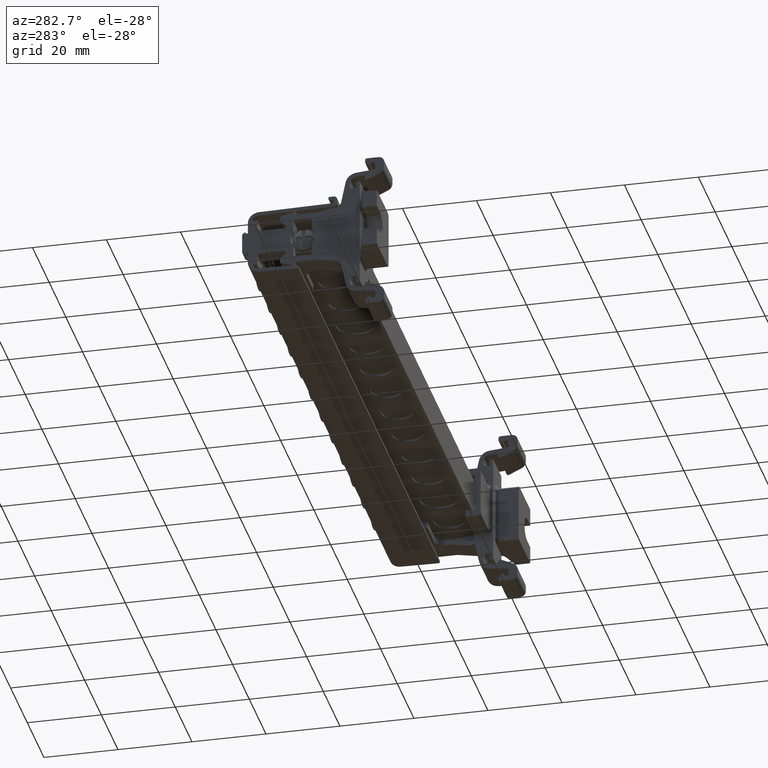
[diagram: clean part render]
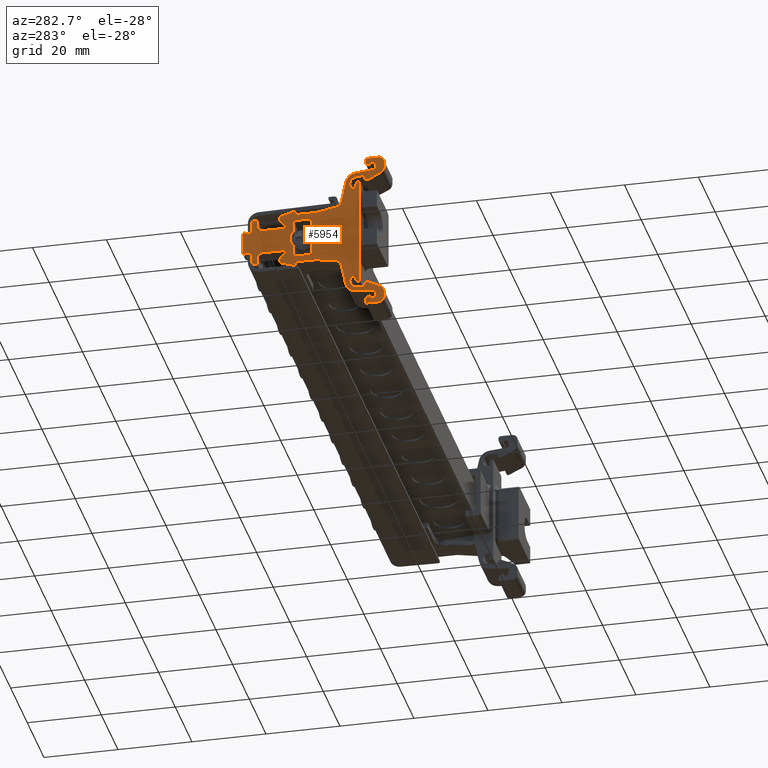
[diagram: same view with one face highlighted and labeled with its STEP entity id]
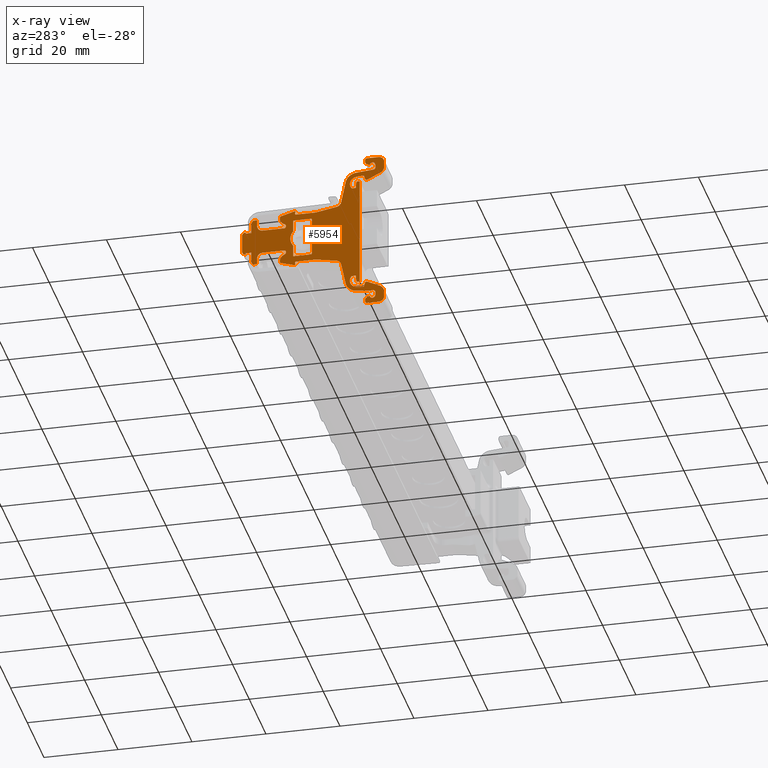
[diagram: x-ray of the same camera — body ghosted, the highlighted face saturated]
A machine part, auxiliary view. The second image highlights one B-rep face of the part: STEP entity #5954.
The next image is the same camera in x-ray: the body ghosted, the highlighted face saturated — about 0% of this face is hidden behind the body in this view.
In plain terms, the highlighted planar face has unit normal (1, -0, 0).
Its self-contained STEP definition (entity closure, byte-faithful):
#893 = EDGE_LOOP ( 'NONE', ( #1614, #1617, #1620, #1565, #1589, #1615, #1575, #1605, #1600, #2834, #1562, #1601, #1594, #1599, #1618, #1596, #1611, #1602, #1590, #1604, #1573, #1593, #1578, #1585, #1582, #1586, #1563, #1561, #1572, #1566, #1581, #1612, #1608, #1567, #1613, #1591, #1580, #1569, #1577, #1587, #1588, #1603, #1607, #1610, #1619, #1639, #1634, #1643, #1684, #1670, #1649, #1669, #1679, #1626, #1632, #1647, #1625, #1624, #1674, #1678, #1673, #1630, #1652, #1658, #1628, #1631, #1659, #1642, #1651, #1663, #1677, #1672, #1660, #1671, #1637, #1668, #1657, #1650, #1681, #1680, #1665, #1655, #1629, #1627, #1645, #1656, #1621, #1635, #1676, #1638, #1653, #1636, #1644, #1633, #1646, #1675, #1661, #1560, #1622, #1662, #1648, #1640, #1641, #1623, #1666, #1654, #1667, #1682, #1664, #1744, #1703, #1690 ) ) ;
#899 = EDGE_LOOP ( 'NONE', ( #1742, #1732, #1735, #1722, #1721, #1717, #1727, #1704, #1698, #1734, #1689, #1747, #1711, #1748, #1741 ) ) ;
#1560 = ORIENTED_EDGE ( 'NONE', *, *, #5372, .T. ) ;
#1561 = ORIENTED_EDGE ( 'NONE', *, *, #5475, .F. ) ;
#1562 = ORIENTED_EDGE ( 'NONE', *, *, #5530, .F. ) ;
#1563 = ORIENTED_EDGE ( 'NONE', *, *, #5459, .F. ) ;
#1565 = ORIENTED_EDGE ( 'NONE', *, *, #5513, .F. ) ;
#1566 = ORIENTED_EDGE ( 'NONE', *, *, #5468, .F. ) ;
#1567 = ORIENTED_EDGE ( 'NONE', *, *, #5452, .F. ) ;
#1569 = ORIENTED_EDGE ( 'NONE', *, *, #5404, .T. ) ;
#1572 = ORIENTED_EDGE ( 'NONE', *, *, #5469, .T. ) ;
#1573 = ORIENTED_EDGE ( 'NONE', *, *, #5375, .F. ) ;
#1575 = ORIENTED_EDGE ( 'NONE', *, *, #5499, .F. ) ;
#1577 = ORIENTED_EDGE ( 'NONE', *, *, #5432, .T. ) ;
#1578 = ORIENTED_EDGE ( 'NONE', *, *, #5444, .F. ) ;
#1580 = ORIENTED_EDGE ( 'NONE', *, *, #5439, .T. ) ;
#1581 = ORIENTED_EDGE ( 'NONE', *, *, #5474, .F. ) ;
#1582 = ORIENTED_EDGE ( 'NONE', *, *, #5476, .F. ) ;
#1585 = ORIENTED_EDGE ( 'NONE', *, *, #5441, .F. ) ;
#1586 = ORIENTED_EDGE ( 'NONE', *, *, #5420, .F. ) ;
#1587 = ORIENTED_EDGE ( 'NONE', *, *, #6617, .T. ) ;
#1588 = ORIENTED_EDGE ( 'NONE', *, *, #8209, .T. ) ;
#1589 = ORIENTED_EDGE ( 'NONE', *, *, #5511, .F. ) ;
#1590 = ORIENTED_EDGE ( 'NONE', *, *, #5529, .F. ) ;
#1591 = ORIENTED_EDGE ( 'NONE', *, *, #5447, .T. ) ;
#1593 = ORIENTED_EDGE ( 'NONE', *, *, #5467, .F. ) ;
#1594 = ORIENTED_EDGE ( 'NONE', *, *, #5458, .F. ) ;
#1596 = ORIENTED_EDGE ( 'NONE', *, *, #5532, .F. ) ;
#1599 = ORIENTED_EDGE ( 'NONE', *, *, #5451, .F. ) ;
#1600 = ORIENTED_EDGE ( 'NONE', *, *, #11826, .F. ) ;
#1601 = ORIENTED_EDGE ( 'NONE', *, *, #5521, .F. ) ;
#1602 = ORIENTED_EDGE ( 'NONE', *, *, #5454, .F. ) ;
#1603 = ORIENTED_EDGE ( 'NONE', *, *, #6633, .F. ) ;
#1604 = ORIENTED_EDGE ( 'NONE', *, *, #5518, .F. ) ;
#1605 = ORIENTED_EDGE ( 'NONE', *, *, #5533, .T. ) ;
#1607 = ORIENTED_EDGE ( 'NONE', *, *, #8224, .F. ) ;
#1608 = ORIENTED_EDGE ( 'NONE', *, *, #5479, .T. ) ;
#1610 = ORIENTED_EDGE ( 'NONE', *, *, #6655, .F. ) ;
#1611 = ORIENTED_EDGE ( 'NONE', *, *, #5508, .F. ) ;
#1612 = ORIENTED_EDGE ( 'NONE', *, *, #5440, .T. ) ;
#1613 = ORIENTED_EDGE ( 'NONE', *, *, #5423, .T. ) ;
#1614 = ORIENTED_EDGE ( 'NONE', *, *, #5506, .T. ) ;
#1615 = ORIENTED_EDGE ( 'NONE', *, *, #5517, .F. ) ;
#1617 = ORIENTED_EDGE ( 'NONE', *, *, #5509, .T. ) ;
#1618 = ORIENTED_EDGE ( 'NONE', *, *, #5525, .F. ) ;
#1619 = ORIENTED_EDGE ( 'NONE', *, *, #8211, .T. ) ;
#1620 = ORIENTED_EDGE ( 'NONE', *, *, #5463, .F. ) ;
#1621 = ORIENTED_EDGE ( 'NONE', *, *, #5385, .T. ) ;
#1622 = ORIENTED_EDGE ( 'NONE', *, *, #5384, .T. ) ;
#1623 = ORIENTED_EDGE ( 'NONE', *, *, #12437, .T. ) ;
#1624 = ORIENTED_EDGE ( 'NONE', *, *, #5435, .F. ) ;
#1625 = ORIENTED_EDGE ( 'NONE', *, *, #5411, .T. ) ;
#1626 = ORIENTED_EDGE ( 'NONE', *, *, #5434, .T. ) ;
#1627 = ORIENTED_EDGE ( 'NONE', *, *, #5371, .T. ) ;
#1628 = ORIENTED_EDGE ( 'NONE', *, *, #6635, .F. ) ;
#1629 = ORIENTED_EDGE ( 'NONE', *, *, #5406, .T. ) ;
#1630 = ORIENTED_EDGE ( 'NONE', *, *, #7334, .F. ) ;
#1631 = ORIENTED_EDGE ( 'NONE', *, *, #6625, .F. ) ;
#1632 = ORIENTED_EDGE ( 'NONE', *, *, #5477, .T. ) ;
#1633 = ORIENTED_EDGE ( 'NONE', *, *, #5370, .T. ) ;
#1634 = ORIENTED_EDGE ( 'NONE', *, *, #6631, .T. ) ;
#1635 = ORIENTED_EDGE ( 'NONE', *, *, #5369, .T. ) ;
#1636 = ORIENTED_EDGE ( 'NONE', *, *, #5399, .T. ) ;
#1637 = ORIENTED_EDGE ( 'NONE', *, *, #5382, .F. ) ;
#1638 = ORIENTED_EDGE ( 'NONE', *, *, #5381, .T. ) ;
#1639 = ORIENTED_EDGE ( 'NONE', *, *, #6640, .T. ) ;
#1640 = ORIENTED_EDGE ( 'NONE', *, *, #5290, .T. ) ;
#1641 = ORIENTED_EDGE ( 'NONE', *, *, #5333, .T. ) ;
#1642 = ORIENTED_EDGE ( 'NONE', *, *, #8137, .F. ) ;
#1643 = ORIENTED_EDGE ( 'NONE', *, *, #6657, .T. ) ;
#1644 = ORIENTED_EDGE ( 'NONE', *, *, #5398, .T. ) ;
#1645 = ORIENTED_EDGE ( 'NONE', *, *, #5401, .F. ) ;
#1646 = ORIENTED_EDGE ( 'NONE', *, *, #5388, .T. ) ;
#1647 = ORIENTED_EDGE ( 'NONE', *, *, #5424, .T. ) ;
#1648 = ORIENTED_EDGE ( 'NONE', *, *, #5414, .T. ) ;
#1649 = ORIENTED_EDGE ( 'NONE', *, *, #7302, .T. ) ;
#1650 = ORIENTED_EDGE ( 'NONE', *, *, #7351, .F. ) ;
#1651 = ORIENTED_EDGE ( 'NONE', *, *, #8094, .F. ) ;
#1652 = ORIENTED_EDGE ( 'NONE', *, *, #7312, .F. ) ;
#1653 = ORIENTED_EDGE ( 'NONE', *, *, #5379, .T. ) ;
#1654 = ORIENTED_EDGE ( 'NONE', *, *, #5341, .F. ) ;
#1655 = ORIENTED_EDGE ( 'NONE', *, *, #5353, .F. ) ;
#1656 = ORIENTED_EDGE ( 'NONE', *, *, #5389, .T. ) ;
#1657 = ORIENTED_EDGE ( 'NONE', *, *, #7391, .F. ) ;
#1658 = ORIENTED_EDGE ( 'NONE', *, *, #6643, .F. ) ;
#1659 = ORIENTED_EDGE ( 'NONE', *, *, #8171, .F. ) ;
#1660 = ORIENTED_EDGE ( 'NONE', *, *, #6659, .F. ) ;
#1661 = ORIENTED_EDGE ( 'NONE', *, *, #5358, .T. ) ;
#1662 = ORIENTED_EDGE ( 'NONE', *, *, #5391, .T. ) ;
#1663 = ORIENTED_EDGE ( 'NONE', *, *, #8218, .T. ) ;
#1664 = ORIENTED_EDGE ( 'NONE', *, *, #5288, .T. ) ;
#1665 = ORIENTED_EDGE ( 'NONE', *, *, #5365, .F. ) ;
#1666 = ORIENTED_EDGE ( 'NONE', *, *, #5328, .T. ) ;
#1667 = ORIENTED_EDGE ( 'NONE', *, *, #5302, .T. ) ;
#1668 = ORIENTED_EDGE ( 'NONE', *, *, #5407, .F. ) ;
#1669 = ORIENTED_EDGE ( 'NONE', *, *, #7384, .T. ) ;
#1670 = ORIENTED_EDGE ( 'NONE', *, *, #8219, .T. ) ;
#1671 = ORIENTED_EDGE ( 'NONE', *, *, #6645, .F. ) ;
#1672 = ORIENTED_EDGE ( 'NONE', *, *, #8103, .T. ) ;
#1673 = ORIENTED_EDGE ( 'NONE', *, *, #5368, .F. ) ;
#1674 = ORIENTED_EDGE ( 'NONE', *, *, #5347, .F. ) ;
#1675 = ORIENTED_EDGE ( 'NONE', *, *, #5360, .T. ) ;
#1676 = ORIENTED_EDGE ( 'NONE', *, *, #5377, .T. ) ;
#1677 = ORIENTED_EDGE ( 'NONE', *, *, #6621, .T. ) ;
#1678 = ORIENTED_EDGE ( 'NONE', *, *, #5374, .F. ) ;
#1679 = ORIENTED_EDGE ( 'NONE', *, *, #5413, .T. ) ;
#1680 = ORIENTED_EDGE ( 'NONE', *, *, #5334, .T. ) ;
#1681 = ORIENTED_EDGE ( 'NONE', *, *, #7412, .F. ) ;
#1682 = ORIENTED_EDGE ( 'NONE', *, *, #5336, .T. ) ;
#1684 = ORIENTED_EDGE ( 'NONE', *, *, #8222, .T. ) ;
#1689 = ORIENTED_EDGE ( 'NONE', *, *, #8146, .F. ) ;
#1690 = ORIENTED_EDGE ( 'NONE', *, *, #5294, .F. ) ;
#1698 = ORIENTED_EDGE ( 'NONE', *, *, #5489, .T. ) ;
#1703 = ORIENTED_EDGE ( 'NONE', *, *, #5450, .T. ) ;
#1704 = ORIENTED_EDGE ( 'NONE', *, *, #8201, .T. ) ;
#1711 = ORIENTED_EDGE ( 'NONE', *, *, #8220, .F. ) ;
#1717 = ORIENTED_EDGE ( 'NONE', *, *, #8106, .T. ) ;
#1721 = ORIENTED_EDGE ( 'NONE', *, *, #6675, .T. ) ;
#1722 = ORIENTED_EDGE ( 'NONE', *, *, #6676, .T. ) ;
#1727 = ORIENTED_EDGE ( 'NONE', *, *, #8117, .T. ) ;
#1732 = ORIENTED_EDGE ( 'NONE', *, *, #5491, .T. ) ;
#1734 = ORIENTED_EDGE ( 'NONE', *, *, #8176, .F. ) ;
#1735 = ORIENTED_EDGE ( 'NONE', *, *, #8123, .T. ) ;
#1741 = ORIENTED_EDGE ( 'NONE', *, *, #8221, .F. ) ;
#1742 = ORIENTED_EDGE ( 'NONE', *, *, #11818, .T. ) ;
#1744 = ORIENTED_EDGE ( 'NONE', *, *, #5310, .T. ) ;
#1747 = ORIENTED_EDGE ( 'NONE', *, *, #8217, .F. ) ;
#1748 = ORIENTED_EDGE ( 'NONE', *, *, #8214, .F. ) ;
#2834 = ORIENTED_EDGE ( 'NONE', *, *, #5486, .F. ) ;
#3156 = DIRECTION ( 'NONE',  ( 3.213426017300810600E-016, -0.08716743514127640900, -0.9961936750707121000 ) ) ;
#4081 = CARTESIAN_POINT ( 'NONE',  ( -124.9526976958241000, 44.96882667606964600, 24.19111794963730200 ) ) ;
#5288 = EDGE_CURVE ( 'NONE', #25742, #25735, #35281, .T. ) ;
#5290 = EDGE_CURVE ( 'NONE', #25771, #25736, #21834, .T. ) ;
#5294 = EDGE_CURVE ( 'NONE', #25502, #25576, #34688, .T. ) ;
#5302 = EDGE_CURVE ( 'NONE', #25765, #25793, #21860, .T. ) ;
#5310 = EDGE_CURVE ( 'NONE', #25735, #25725, #34715, .T. ) ;
#5328 = EDGE_CURVE ( 'NONE', #19249, #25722, #21911, .T. ) ;
#5333 = EDGE_CURVE ( 'NONE', #25736, #19248, #34808, .T. ) ;
#5334 = EDGE_CURVE ( 'NONE', #9958, #25721, #21896, .T. ) ;
#5336 = EDGE_CURVE ( 'NONE', #25793, #25742, #34812, .T. ) ;
#5341 = EDGE_CURVE ( 'NONE', #25765, #25722, #34147, .T. ) ;
#5347 = EDGE_CURVE ( 'NONE', #25728, #25806, #34130, .T. ) ;
#5353 = EDGE_CURVE ( 'NONE', #25723, #25755, #34242, .T. ) ;
#5358 = EDGE_CURVE ( 'NONE', #25730, #25783, #34254, .T. ) ;
#5360 = EDGE_CURVE ( 'NONE', #25734, #25730, #21957, .T. ) ;
#5365 = EDGE_CURVE ( 'NONE', #25755, #25721, #34299, .T. ) ;
#5368 = EDGE_CURVE ( 'NONE', #10052, #25789, #34266, .T. ) ;
#5369 = EDGE_CURVE ( 'NONE', #25753, #25754, #21964, .T. ) ;
#5370 = EDGE_CURVE ( 'NONE', #25747, #25751, #21959, .T. ) ;
#5371 = EDGE_CURVE ( 'NONE', #25719, #25745, #34348, .T. ) ;
#5372 = EDGE_CURVE ( 'NONE', #25783, #25720, #21967, .T. ) ;
#5374 = EDGE_CURVE ( 'NONE', #25789, #25728, #34329, .T. ) ;
#5375 = EDGE_CURVE ( 'NONE', #25815, #25838, #34324, .T. ) ;
#5377 = EDGE_CURVE ( 'NONE', #25754, #25749, #34296, .T. ) ;
#5379 = EDGE_CURVE ( 'NONE', #25744, #25795, #34420, .T. ) ;
#5381 = EDGE_CURVE ( 'NONE', #25749, #25744, #22026, .T. ) ;
#5382 = EDGE_CURVE ( 'NONE', #25761, #25727, #34287, .T. ) ;
#5384 = EDGE_CURVE ( 'NONE', #25720, #25748, #34388, .T. ) ;
#5385 = EDGE_CURVE ( 'NONE', #25804, #25753, #34393, .T. ) ;
#5388 = EDGE_CURVE ( 'NONE', #25751, #25734, #34443, .T. ) ;
#5389 = EDGE_CURVE ( 'NONE', #25767, #25804, #22028, .T. ) ;
#5391 = EDGE_CURVE ( 'NONE', #25748, #25764, #21981, .T. ) ;
#5398 = EDGE_CURVE ( 'NONE', #25750, #25747, #34551, .T. ) ;
#5399 = EDGE_CURVE ( 'NONE', #25795, #25750, #22011, .T. ) ;
#5401 = EDGE_CURVE ( 'NONE', #25767, #25745, #34496, .T. ) ;
#5404 = EDGE_CURVE ( 'NONE', #25788, #25817, #22012, .T. ) ;
#5406 = EDGE_CURVE ( 'NONE', #25723, #25719, #21973, .T. ) ;
#5407 = EDGE_CURVE ( 'NONE', #9946, #25761, #22007, .T. ) ;
#5411 = EDGE_CURVE ( 'NONE', #25775, #25801, #34555, .T. ) ;
#5413 = EDGE_CURVE ( 'NONE', #10074, #25811, #34606, .T. ) ;
#5414 = EDGE_CURVE ( 'NONE', #25764, #25771, #34600, .T. ) ;
#5420 = EDGE_CURVE ( 'NONE', #25843, #25802, #22005, .T. ) ;
#5423 = EDGE_CURVE ( 'NONE', #25826, #25855, #34609, .T. ) ;
#5424 = EDGE_CURVE ( 'NONE', #25860, #25775, #22055, .T. ) ;
#5432 = EDGE_CURVE ( 'NONE', #25817, #25797, #34622, .T. ) ;
#5434 = EDGE_CURVE ( 'NONE', #25811, #25779, #34640, .T. ) ;
#5435 = EDGE_CURVE ( 'NONE', #25806, #25801, #22046, .T. ) ;
#5439 = EDGE_CURVE ( 'NONE', #25821, #25788, #34621, .T. ) ;
#5440 = EDGE_CURVE ( 'NONE', #25858, #25861, #34964, .T. ) ;
#5441 = EDGE_CURVE ( 'NONE', #25853, #25800, #22078, .T. ) ;
#5444 = EDGE_CURVE ( 'NONE', #25800, #25835, #30492, .T. ) ;
#5447 = EDGE_CURVE ( 'NONE', #25855, #25821, #30537, .T. ) ;
#5450 = EDGE_CURVE ( 'NONE', #25725, #25576, #30524, .T. ) ;
#5451 = EDGE_CURVE ( 'NONE', #25774, #25766, #22036, .T. ) ;
#5452 = EDGE_CURVE ( 'NONE', #25826, #25758, #22059, .T. ) ;
#5454 = EDGE_CURVE ( 'NONE', #25824, #25813, #22062, .T. ) ;
#5458 = EDGE_CURVE ( 'NONE', #25766, #25836, #30621, .T. ) ;
#5459 = EDGE_CURVE ( 'NONE', #25760, #25843, #30485, .T. ) ;
#5463 = EDGE_CURVE ( 'NONE', #25857, #25593, #30566, .T. ) ;
#5467 = EDGE_CURVE ( 'NONE', #25835, #25815, #22053, .T. ) ;
#5468 = EDGE_CURVE ( 'NONE', #25787, #25759, #30568, .T. ) ;
#5469 = EDGE_CURVE ( 'NONE', #25807, #25759, #30590, .T. ) ;
#5474 = EDGE_CURVE ( 'NONE', #25858, #25787, #22096, .T. ) ;
#5475 = EDGE_CURVE ( 'NONE', #25807, #25760, #22087, .T. ) ;
#5476 = EDGE_CURVE ( 'NONE', #25802, #25853, #30706, .T. ) ;
#5477 = EDGE_CURVE ( 'NONE', #25779, #25860, #30700, .T. ) ;
#5479 = EDGE_CURVE ( 'NONE', #25861, #25758, #30726, .T. ) ;
#5486 = EDGE_CURVE ( 'NONE', #25820, #19238, #22099, .T. ) ;
#5489 = EDGE_CURVE ( 'NONE', #25822, #25803, #22105, .T. ) ;
#5491 = EDGE_CURVE ( 'NONE', #19331, #25832, #22093, .T. ) ;
#5499 = EDGE_CURVE ( 'NONE', #25805, #25823, #22119, .T. ) ;
#5506 = EDGE_CURVE ( 'NONE', #25502, #25431, #30829, .T. ) ;
#5508 = EDGE_CURVE ( 'NONE', #25813, #25777, #30918, .T. ) ;
#5509 = EDGE_CURVE ( 'NONE', #25431, #25593, #30892, .T. ) ;
#5511 = EDGE_CURVE ( 'NONE', #25814, #25784, #30836, .T. ) ;
#5513 = EDGE_CURVE ( 'NONE', #25784, #25857, #30904, .T. ) ;
#5517 = EDGE_CURVE ( 'NONE', #25823, #25814, #30980, .T. ) ;
#5518 = EDGE_CURVE ( 'NONE', #25838, #25825, #22125, .T. ) ;
#5521 = EDGE_CURVE ( 'NONE', #25836, #25773, #22157, .T. ) ;
#5525 = EDGE_CURVE ( 'NONE', #25852, #25774, #30029, .T. ) ;
#5529 = EDGE_CURVE ( 'NONE', #25825, #25824, #30052, .T. ) ;
#5530 = EDGE_CURVE ( 'NONE', #25773, #25820, #30076, .T. ) ;
#5532 = EDGE_CURVE ( 'NONE', #25777, #25852, #22183, .T. ) ;
#5533 = EDGE_CURVE ( 'NONE', #25805, #19307, #30168, .T. ) ;
#5954 = ADVANCED_FACE ( 'NONE', ( #10908, #10926 ), #10928, .F. ) ;
#6322 = AXIS2_PLACEMENT_3D ( 'NONE', #23355, #23356, #23349 ) ;
#6471 = CIRCLE ( 'NONE', #6322, 2.000000000000191000 ) ;
#6617 = EDGE_CURVE ( 'NONE', #25797, #24982, #13363, .T. ) ;
#6621 = EDGE_CURVE ( 'NONE', #24971, #25012, #28582, .T. ) ;
#6625 = EDGE_CURVE ( 'NONE', #24975, #24984, #28609, .T. ) ;
#6631 = EDGE_CURVE ( 'NONE', #24974, #24997, #28592, .T. ) ;
#6633 = EDGE_CURVE ( 'NONE', #24986, #25011, #13452, .T. ) ;
#6635 = EDGE_CURVE ( 'NONE', #24984, #24968, #13454, .T. ) ;
#6640 = EDGE_CURVE ( 'NONE', #25018, #24974, #13457, .T. ) ;
#6643 = EDGE_CURVE ( 'NONE', #24968, #9933, #28653, .T. ) ;
#6645 = EDGE_CURVE ( 'NONE', #25727, #24965, #13420, .T. ) ;
#6655 = EDGE_CURVE ( 'NONE', #24966, #25020, #13483, .T. ) ;
#6657 = EDGE_CURVE ( 'NONE', #24997, #24995, #28691, .T. ) ;
#6659 = EDGE_CURVE ( 'NONE', #24965, #25044, #13500, .T. ) ;
#6675 = EDGE_CURVE ( 'NONE', #25019, #25007, #28753, .T. ) ;
#6676 = EDGE_CURVE ( 'NONE', #25031, #25019, #28733, .T. ) ;
#7302 = EDGE_CURVE ( 'NONE', #9888, #9985, #13974, .T. ) ;
#7312 = EDGE_CURVE ( 'NONE', #9933, #9948, #13991, .T. ) ;
#7334 = EDGE_CURVE ( 'NONE', #9948, #10052, #14027, .T. ) ;
#7351 = EDGE_CURVE ( 'NONE', #10000, #9897, #14032, .T. ) ;
#7384 = EDGE_CURVE ( 'NONE', #9985, #10074, #14087, .T. ) ;
#7391 = EDGE_CURVE ( 'NONE', #9897, #9946, #14165, .T. ) ;
#7412 = EDGE_CURVE ( 'NONE', #9958, #10000, #14141, .T. ) ;
#8094 = EDGE_CURVE ( 'NONE', #24988, #24972, #16211, .T. ) ;
#8103 = EDGE_CURVE ( 'NONE', #25012, #25044, #35589, .T. ) ;
#8106 = EDGE_CURVE ( 'NONE', #25007, #25051, #35580, .T. ) ;
#8117 = EDGE_CURVE ( 'NONE', #25051, #24983, #16258, .T. ) ;
#8123 = EDGE_CURVE ( 'NONE', #25832, #25031, #35592, .T. ) ;
#8137 = EDGE_CURVE ( 'NONE', #24972, #25014, #35344, .T. ) ;
#8146 = EDGE_CURVE ( 'NONE', #24976, #24950, #16283, .T. ) ;
#8171 = EDGE_CURVE ( 'NONE', #25014, #24975, #16319, .T. ) ;
#8176 = EDGE_CURVE ( 'NONE', #24950, #25803, #35379, .T. ) ;
#8201 = EDGE_CURVE ( 'NONE', #24983, #25822, #35403, .T. ) ;
#8209 = EDGE_CURVE ( 'NONE', #24982, #25011, #35372, .T. ) ;
#8211 = EDGE_CURVE ( 'NONE', #24966, #25018, #16442, .T. ) ;
#8214 = EDGE_CURVE ( 'NONE', #24989, #25072, #16407, .T. ) ;
#8217 = EDGE_CURVE ( 'NONE', #25013, #24976, #35440, .T. ) ;
#8218 = EDGE_CURVE ( 'NONE', #24988, #24971, #35425, .T. ) ;
#8219 = EDGE_CURVE ( 'NONE', #24990, #9888, #15478, .T. ) ;
#8220 = EDGE_CURVE ( 'NONE', #25072, #25013, #15480, .T. ) ;
#8221 = EDGE_CURVE ( 'NONE', #19268, #24989, #35464, .T. ) ;
#8222 = EDGE_CURVE ( 'NONE', #24995, #24990, #35417, .T. ) ;
#8224 = EDGE_CURVE ( 'NONE', #25020, #24986, #15476, .T. ) ;
#9888 = VERTEX_POINT ( 'NONE', #17076 ) ;
#9897 = VERTEX_POINT ( 'NONE', #17108 ) ;
#9933 = VERTEX_POINT ( 'NONE', #17161 ) ;
#9946 = VERTEX_POINT ( 'NONE', #17121 ) ;
#9948 = VERTEX_POINT ( 'NONE', #17156 ) ;
#9958 = VERTEX_POINT ( 'NONE', #17143 ) ;
#9985 = VERTEX_POINT ( 'NONE', #17223 ) ;
#10000 = VERTEX_POINT ( 'NONE', #17198 ) ;
#10052 = VERTEX_POINT ( 'NONE', #17298 ) ;
#10074 = VERTEX_POINT ( 'NONE', #17278 ) ;
#10903 = CARTESIAN_POINT ( 'NONE',  ( -124.9526976958240100, 65.03482648293409300, 44.61224998368919600 ) ) ;
#10908 = FACE_OUTER_BOUND ( 'NONE', #893, .T. ) ;
#10917 = DIRECTION ( 'NONE',  ( -7.897574987183420400E-015, -1.000000000000000000, 0.0000000000000000000 ) ) ;
#10920 = DIRECTION ( 'NONE',  ( 1.000000000000000000, -7.897574987183420400E-015, 3.511194208363125300E-015 ) ) ;
#10926 = FACE_BOUND ( 'NONE', #899, .T. ) ;
#10928 = PLANE ( 'NONE',  #12646 ) ;
#11818 = EDGE_CURVE ( 'NONE', #19268, #19331, #31176, .T. ) ;
#11826 = EDGE_CURVE ( 'NONE', #19238, #19307, #31197, .T. ) ;
#12437 = EDGE_CURVE ( 'NONE', #19248, #19249, #6471, .T. ) ;
#12610 = VECTOR ( 'NONE', #28759, 1000.000000000000000 ) ;
#12646 = AXIS2_PLACEMENT_3D ( 'NONE', #10903, #10920, #10917 ) ;
#12865 = VECTOR ( 'NONE', #28716, 1000.000000000000000 ) ;
#13314 = VECTOR ( 'NONE', #28584, 1000.000000000000000 ) ;
#13351 = AXIS2_PLACEMENT_3D ( 'NONE', #28562, #28565, #28550 ) ;
#13363 = CIRCLE ( 'NONE', #13351, 1.008000000000022700 ) ;
#13420 = CIRCLE ( 'NONE', #13506, 1.008000000000022700 ) ;
#13452 = CIRCLE ( 'NONE', #13465, 0.5000000000000004400 ) ;
#13454 = CIRCLE ( 'NONE', #13474, 0.5000000000000004400 ) ;
#13457 = CIRCLE ( 'NONE', #13473, 1.511999999999999600 ) ;
#13465 = AXIS2_PLACEMENT_3D ( 'NONE', #28600, #28601, #28602 ) ;
#13473 = AXIS2_PLACEMENT_3D ( 'NONE', #28638, #28629, #28668 ) ;
#13474 = AXIS2_PLACEMENT_3D ( 'NONE', #28630, #28664, #28650 ) ;
#13483 = CIRCLE ( 'NONE', #13485, 0.5000000000000004400 ) ;
#13485 = AXIS2_PLACEMENT_3D ( 'NONE', #28688, #28682, #28706 ) ;
#13491 = VECTOR ( 'NONE', #28709, 1000.000000000000000 ) ;
#13493 = VECTOR ( 'NONE', #28586, 1000.000000000000000 ) ;
#13497 = VECTOR ( 'NONE', #28648, 1000.000000000000000 ) ;
#13500 = CIRCLE ( 'NONE', #13504, 2.000000000000050200 ) ;
#13504 = AXIS2_PLACEMENT_3D ( 'NONE', #28671, #28696, #28707 ) ;
#13506 = AXIS2_PLACEMENT_3D ( 'NONE', #28644, #28633, #28635 ) ;
#13511 = VECTOR ( 'NONE', #28624, 1000.000000000000000 ) ;
#13934 = DIRECTION ( 'NONE',  ( 2.371609426668210500E-015, 9.486437706672830800E-015, -1.000000000000000000 ) ) ;
#13959 = CARTESIAN_POINT ( 'NONE',  ( -124.9526976958240100, 73.21282648293339400, 43.93826644650375400 ) ) ;
#13974 = LINE ( 'NONE', #13959, #24432 ) ;
#13989 = CARTESIAN_POINT ( 'NONE',  ( -124.9526976958239000, 73.21282648293339400, 35.14284998369124900 ) ) ;
#13990 = DIRECTION ( 'NONE',  ( 8.576308475738590900E-015, 1.000000000000000000, 5.070523758111060700E-030 ) ) ;
#13991 = LINE ( 'NONE', #14009, #24514 ) ;
#14001 = DIRECTION ( 'NONE',  ( -4.650778990058040000E-015, 9.486437706672892400E-015, 1.000000000000000000 ) ) ;
#14009 = CARTESIAN_POINT ( 'NONE',  ( -124.9526976958239000, 73.21282648293339400, 32.21703352087870100 ) ) ;
#14027 = LINE ( 'NONE', #13989, #24538 ) ;
#14032 = LINE ( 'NONE', #14034, #24537 ) ;
#14034 = CARTESIAN_POINT ( 'NONE',  ( -124.9526976958240100, 61.32908888637999900, 30.03104998369304800 ) ) ;
#14067 = DIRECTION ( 'NONE',  ( 2.913209458120440400E-014, 1.000000000000000000, 1.494212380018366000E-028 ) ) ;
#14087 = LINE ( 'NONE', #14094, #24490 ) ;
#14094 = CARTESIAN_POINT ( 'NONE',  ( -124.9526976958239000, 73.21282648293339400, 41.01244998369124800 ) ) ;
#14102 = DIRECTION ( 'NONE',  ( 8.576308475738590900E-015, 1.000000000000000000, 0.0000000000000000000 ) ) ;
#14141 = LINE ( 'NONE', #14146, #24533 ) ;
#14146 = CARTESIAN_POINT ( 'NONE',  ( -124.9526976958240100, 61.50682648293420100, 31.03904998369310100 ) ) ;
#14148 = DIRECTION ( 'NONE',  ( 5.648316949552062700E-015, 0.9611011447769712800, 0.2761966500672940500 ) ) ;
#14158 = DIRECTION ( 'NONE',  ( 1.364599841449755100E-016, -0.1736481776669389400, -0.9848077530122064700 ) ) ;
#14165 = LINE ( 'NONE', #14170, #24493 ) ;
#14170 = CARTESIAN_POINT ( 'NONE',  ( -124.9526976958240100, 61.56727615041510400, 30.03104998369304800 ) ) ;
#15436 = CARTESIAN_POINT ( 'NONE',  ( -124.9526976958240100, 72.81491734236480800, 44.60171648552984200 ) ) ;
#15437 = CARTESIAN_POINT ( 'NONE',  ( -124.9526976958240100, 64.41902670048101200, 34.26864998369295300 ) ) ;
#15439 = DIRECTION ( 'NONE',  ( 1.000000000000000000, -7.897574987183420400E-015, 3.511194208363125300E-015 ) ) ;
#15440 = DIRECTION ( 'NONE',  ( -7.655738919030110700E-015, -1.000000000000000000, -1.582186043266455000E-013 ) ) ;
#15441 = DIRECTION ( 'NONE',  ( 1.000000000000000000, -7.897574987183420400E-015, 3.511194208363125300E-015 ) ) ;
#15442 = CARTESIAN_POINT ( 'NONE',  ( -124.9526976958240100, 63.91902670048101200, 42.45486620778779500 ) ) ;
#15445 = DIRECTION ( 'NONE',  ( -1.000000000000000000, 7.897574987183420400E-015, -3.511194208363125300E-015 ) ) ;
#15453 = DIRECTION ( 'NONE',  ( -1.000000000000000000, 7.897574987183420400E-015, -3.511194208363125300E-015 ) ) ;
#15454 = DIRECTION ( 'NONE',  ( 0.0000000000000000000, -1.000000000000000000, 0.0000000000000000000 ) ) ;
#15455 = DIRECTION ( 'NONE',  ( 0.0000000000000000000, -1.000000000000000000, 0.0000000000000000000 ) ) ;
#15459 = DIRECTION ( 'NONE',  ( 0.0000000000000000000, -1.000000000000000000, 0.0000000000000000000 ) ) ;
#15461 = DIRECTION ( 'NONE',  ( 0.0000000000000000000, -1.000000000000000000, 0.0000000000000000000 ) ) ;
#15462 = DIRECTION ( 'NONE',  ( -3.963074673869545600E-015, 0.0000000000000000000, 1.000000000000000000 ) ) ;
#15469 = CARTESIAN_POINT ( 'NONE',  ( -124.9526976958240100, 72.71282648293311000, 44.11224998369289800 ) ) ;
#15471 = CARTESIAN_POINT ( 'NONE',  ( -124.9526976958240100, 62.65701656017719000, 32.75264998369264900 ) ) ;
#15476 = LINE ( 'NONE', #15442, #35443 ) ;
#15478 = LINE ( 'NONE', #15436, #35426 ) ;
#15479 = CARTESIAN_POINT ( 'NONE',  ( -124.9526976958240100, 62.41882648293069700, 35.73063464501105100 ) ) ;
#15480 = LINE ( 'NONE', #15471, #35438 ) ;
#15481 = CARTESIAN_POINT ( 'NONE',  ( -124.9526976958240100, 57.21882648293350100, 33.05264998369175100 ) ) ;
#15482 = DIRECTION ( 'NONE',  ( 8.969309837141111100E-015, 0.5143428359353190400, -0.8575846588658250200 ) ) ;
#16211 = LINE ( 'NONE', #16212, #35610 ) ;
#16212 = CARTESIAN_POINT ( 'NONE',  ( -124.9526976958240100, 57.91882648293340500, 34.76864998369189400 ) ) ;
#16220 = DIRECTION ( 'NONE',  ( 0.0000000000000000000, 1.938238520643950100E-014, -1.000000000000000000 ) ) ;
#16225 = CARTESIAN_POINT ( 'NONE',  ( -124.9526976958240100, 64.41902670048101200, 34.07168043476324500 ) ) ;
#16228 = DIRECTION ( 'NONE',  ( 0.0000000000000000000, -1.000000000000000000, 0.0000000000000000000 ) ) ;
#16233 = DIRECTION ( 'NONE',  ( 1.000000000000000000, -7.897574987183420400E-015, 3.511194208363125300E-015 ) ) ;
#16234 = CARTESIAN_POINT ( 'NONE',  ( -124.9526976958241000, 57.21882648293350100, 43.10264998369069600 ) ) ;
#16247 = DIRECTION ( 'NONE',  ( 0.0000000000000000000, -1.000000000000000000, 0.0000000000000000000 ) ) ;
#16253 = DIRECTION ( 'NONE',  ( 7.988858113050031100E-015, 1.000000000000000000, 1.826024711554585200E-013 ) ) ;
#16256 = DIRECTION ( 'NONE',  ( 1.000000000000000000, -7.897574987183420400E-015, 3.511194208363125300E-015 ) ) ;
#16258 = LINE ( 'NONE', #16260, #35609 ) ;
#16260 = CARTESIAN_POINT ( 'NONE',  ( -124.9526976958241000, 56.91882648293359600, 43.10264998369069600 ) ) ;
#16264 = DIRECTION ( 'NONE',  ( -1.000000000000000000, 7.897574987183420400E-015, -3.511194208363125300E-015 ) ) ;
#16267 = DIRECTION ( 'NONE',  ( 0.0000000000000000000, -1.000000000000000000, 0.0000000000000000000 ) ) ;
#16268 = DIRECTION ( 'NONE',  ( -9.178431089824379200E-015, -1.000000000000000000, 0.0000000000000000000 ) ) ;
#16275 = CARTESIAN_POINT ( 'NONE',  ( -124.9526976958240100, 62.41882648293069700, 40.42466532237140300 ) ) ;
#16282 = CARTESIAN_POINT ( 'NONE',  ( -124.9526976958240100, 56.91882648293359600, 33.05264998369175100 ) ) ;
#16283 = LINE ( 'NONE', #16282, #35362 ) ;
#16292 = CARTESIAN_POINT ( 'NONE',  ( -124.9526976958239000, 70.18882648293310900, 33.25664998369409600 ) ) ;
#16299 = DIRECTION ( 'NONE',  ( -7.022388416726250500E-015, 1.938238520643955200E-014, 1.000000000000000000 ) ) ;
#16304 = DIRECTION ( 'NONE',  ( -1.000000000000000000, 7.897574987183420400E-015, -3.511194208363125300E-015 ) ) ;
#16319 = LINE ( 'NONE', #16330, #35394 ) ;
#16322 = CARTESIAN_POINT ( 'NONE',  ( -124.9526976958241000, 56.41882648293359600, 35.73063464501024800 ) ) ;
#16327 = DIRECTION ( 'NONE',  ( 2.973080582990985100E-015, 3.239446266988210100E-014, -1.000000000000000000 ) ) ;
#16330 = CARTESIAN_POINT ( 'NONE',  ( -124.9526976958239000, 71.70082648293311000, 33.25664998369409600 ) ) ;
#16332 = DIRECTION ( 'NONE',  ( 0.0000000000000000000, 1.000000000000000000, 0.0000000000000000000 ) ) ;
#16347 = DIRECTION ( 'NONE',  ( 1.000000000000000000, -7.897574987183420400E-015, 3.511194208363125300E-015 ) ) ;
#16395 = CARTESIAN_POINT ( 'NONE',  ( -124.9526976958241000, 56.41882648293359600, 40.42466532237224900 ) ) ;
#16398 = DIRECTION ( 'NONE',  ( -1.000000000000000000, 7.897574987183420400E-015, -3.511194208363125300E-015 ) ) ;
#16404 = CARTESIAN_POINT ( 'NONE',  ( -124.9526976958241000, 57.91882648293340500, 41.38664998369055300 ) ) ;
#16407 = LINE ( 'NONE', #16411, #35359 ) ;
#16411 = CARTESIAN_POINT ( 'NONE',  ( -124.9526976958240100, 61.91882648293060500, 32.75264998369255000 ) ) ;
#16413 = DIRECTION ( 'NONE',  ( 7.988858113051321600E-015, 1.000000000000000000, -1.826024711554585200E-013 ) ) ;
#16415 = DIRECTION ( 'NONE',  ( -6.938893903907054000E-015, -1.000000000000000000, 0.0000000000000000000 ) ) ;
#16422 = DIRECTION ( 'NONE',  ( 0.0000000000000000000, 1.000000000000000000, 0.0000000000000000000 ) ) ;
#16427 = CARTESIAN_POINT ( 'NONE',  ( -124.9526976958240100, 63.53882648293410500, 44.42354422735414200 ) ) ;
#16429 = DIRECTION ( 'NONE',  ( 3.511194208363125300E-015, -4.582757863597410100E-029, -1.000000000000000000 ) ) ;
#16439 = DIRECTION ( 'NONE',  ( -1.000000000000000000, 7.897574987183420400E-015, -3.511194208363125300E-015 ) ) ;
#16442 = LINE ( 'NONE', #16404, #35346 ) ;
#17076 = CARTESIAN_POINT ( 'NONE',  ( -124.9526976958240100, 73.21282648293339400, 43.93826644650375400 ) ) ;
#17108 = CARTESIAN_POINT ( 'NONE',  ( -124.9526976958240100, 61.56727615041510400, 30.03104998369304800 ) ) ;
#17121 = CARTESIAN_POINT ( 'NONE',  ( -124.9526976958240100, 65.08287282211169600, 31.04134534021009600 ) ) ;
#17143 = CARTESIAN_POINT ( 'NONE',  ( -124.9526976958240100, 61.44474273105949900, 30.68695553039240300 ) ) ;
#17156 = CARTESIAN_POINT ( 'NONE',  ( -124.9526976958239000, 73.21282648293339400, 35.14284998369124900 ) ) ;
#17161 = CARTESIAN_POINT ( 'NONE',  ( -124.9526976958239000, 73.21282648293339400, 32.21703352087870100 ) ) ;
#17198 = CARTESIAN_POINT ( 'NONE',  ( -124.9526976958240100, 61.32908888637999900, 30.03104998369304800 ) ) ;
#17223 = CARTESIAN_POINT ( 'NONE',  ( -124.9526976958239000, 73.21282648293339400, 41.01244998369124800 ) ) ;
#17278 = CARTESIAN_POINT ( 'NONE',  ( -124.9526976958239000, 74.83098047623640500, 41.01244998369124800 ) ) ;
#17298 = CARTESIAN_POINT ( 'NONE',  ( -124.9526976958239000, 74.83098047623640500, 35.14284998369124900 ) ) ;
#17408 = DIRECTION ( 'NONE',  ( 8.387904386714116300E-015, 1.000000000000000000, 0.0000000000000000000 ) ) ;
#17422 = CARTESIAN_POINT ( 'NONE',  ( -124.9526976958240100, 59.41882648293169900, 38.07764998369120200 ) ) ;
#17423 = DIRECTION ( 'NONE',  ( 1.000000000000000000, -7.897574987183420400E-015, 3.511194208363125300E-015 ) ) ;
#17435 = DIRECTION ( 'NONE',  ( -1.000000000000000000, 7.897574987183420400E-015, -3.511194205269045200E-015 ) ) ;
#17442 = DIRECTION ( 'NONE',  ( 6.938893903906565700E-015, 0.9999999999999851200, 1.731738814847284500E-007 ) ) ;
#17478 = CARTESIAN_POINT ( 'NONE',  ( -124.9526976958242000, 44.64504681959609700, 52.51835480252169900 ) ) ;
#18490 = CARTESIAN_POINT ( 'NONE',  ( -124.9526976958241000, 44.92394467542340000, 20.44912216232954800 ) ) ;
#18648 = CARTESIAN_POINT ( 'NONE',  ( -124.9526976958242000, 44.97751323073789800, 51.17200985974282200 ) ) ;
#19238 = VERTEX_POINT ( 'NONE', #23721 ) ;
#19248 = VERTEX_POINT ( 'NONE', #23740 ) ;
#19249 = VERTEX_POINT ( 'NONE', #23745 ) ;
#19268 = VERTEX_POINT ( 'NONE', #23702 ) ;
#19307 = VERTEX_POINT ( 'NONE', #23757 ) ;
#19331 = VERTEX_POINT ( 'NONE', #23782 ) ;
#19884 = CARTESIAN_POINT ( 'NONE',  ( -124.9526976958241000, 56.81263063100379200, 36.03872277032945000 ) ) ;
#19965 = CARTESIAN_POINT ( 'NONE',  ( -124.9526976958239000, 75.74178047623640000, 35.60251509756950100 ) ) ;
#21182 = CARTESIAN_POINT ( 'NONE',  ( -124.9526976958243000, 39.76324495096660200, 56.61584379062190200 ) ) ;
#21834 = CIRCLE ( 'NONE', #21886, 0.3000000000002351300 ) ;
#21847 = VECTOR ( 'NONE', #34680, 1000.000000000000000 ) ;
#21857 = VECTOR ( 'NONE', #3156, 999.9999999999998900 ) ;
#21860 = CIRCLE ( 'NONE', #21923, 0.5000000000001605400 ) ;
#21886 = AXIS2_PLACEMENT_3D ( 'NONE', #34661, #34677, #34691 ) ;
#21894 = VECTOR ( 'NONE', #34736, 1000.000000000000000 ) ;
#21896 = CIRCLE ( 'NONE', #21898, 0.3000000000000016500 ) ;
#21898 = AXIS2_PLACEMENT_3D ( 'NONE', #34817, #34818, #34828 ) ;
#21903 = AXIS2_PLACEMENT_3D ( 'NONE', #34825, #34819, #34803 ) ;
#21911 = CIRCLE ( 'NONE', #21903, 2.000000000000191000 ) ;
#21920 = VECTOR ( 'NONE', #34218, 1000.000000000000100 ) ;
#21922 = VECTOR ( 'NONE', #34821, 1000.000000000000000 ) ;
#21923 = AXIS2_PLACEMENT_3D ( 'NONE', #34738, #34737, #34723 ) ;
#21924 = VECTOR ( 'NONE', #34813, 1000.000000000000000 ) ;
#21931 = VECTOR ( 'NONE', #34237, 1000.000000000000000 ) ;
#21943 = VECTOR ( 'NONE', #34161, 1000.000000000000000 ) ;
#21947 = VECTOR ( 'NONE', #34157, 1000.000000000000000 ) ;
#21949 = VECTOR ( 'NONE', #34338, 999.9999999999998900 ) ;
#21950 = AXIS2_PLACEMENT_3D ( 'NONE', #34351, #34357, #34274 ) ;
#21954 = AXIS2_PLACEMENT_3D ( 'NONE', #34327, #34277, #34282 ) ;
#21956 = AXIS2_PLACEMENT_3D ( 'NONE', #34190, #34202, #34192 ) ;
#21957 = CIRCLE ( 'NONE', #21956, 1.500000000000001300 ) ;
#21959 = CIRCLE ( 'NONE', #21954, 0.5059984879067919200 ) ;
#21961 = VECTOR ( 'NONE', #34344, 1000.000000000000100 ) ;
#21963 = VECTOR ( 'NONE', #34345, 1000.000000000000000 ) ;
#21964 = CIRCLE ( 'NONE', #21965, 0.5000000000000004400 ) ;
#21965 = AXIS2_PLACEMENT_3D ( 'NONE', #34349, #34308, #34311 ) ;
#21967 = CIRCLE ( 'NONE', #21950, 1.999999999999879000 ) ;
#21968 = VECTOR ( 'NONE', #34408, 1000.000000000000000 ) ;
#21970 = VECTOR ( 'NONE', #34583, 999.9999999999998900 ) ;
#21971 = AXIS2_PLACEMENT_3D ( 'NONE', #34521, #34548, #34485 ) ;
#21973 = CIRCLE ( 'NONE', #22024, 1.500000000000056800 ) ;
#21978 = AXIS2_PLACEMENT_3D ( 'NONE', #34386, #34450, #34370 ) ;
#21979 = VECTOR ( 'NONE', #34498, 1000.000000000000100 ) ;
#21981 = CIRCLE ( 'NONE', #21983, 0.5000000000000010000 ) ;
#21983 = AXIS2_PLACEMENT_3D ( 'NONE', #34391, #34382, #34384 ) ;
#21989 = AXIS2_PLACEMENT_3D ( 'NONE', #34602, #34565, #34604 ) ;
#21991 = VECTOR ( 'NONE', #34530, 1000.000000000000100 ) ;
#21994 = VECTOR ( 'NONE', #34336, 1000.000000000000000 ) ;
#21996 = AXIS2_PLACEMENT_3D ( 'NONE', #34458, #34471, #34554 ) ;
#21998 = VECTOR ( 'NONE', #34571, 1000.000000000000000 ) ;
#22004 = VECTOR ( 'NONE', #34360, 1000.000000000000000 ) ;
#22005 = CIRCLE ( 'NONE', #21989, 0.5000000000000004400 ) ;
#22006 = VECTOR ( 'NONE', #34425, 1000.000000000000100 ) ;
#22007 = CIRCLE ( 'NONE', #21996, 0.5040000000009620100 ) ;
#22009 = VECTOR ( 'NONE', #34284, 1000.000000000000000 ) ;
#22010 = AXIS2_PLACEMENT_3D ( 'NONE', #34379, #34428, #34397 ) ;
#22011 = CIRCLE ( 'NONE', #21971, 0.5059989537840523500 ) ;
#22012 = CIRCLE ( 'NONE', #22018, 0.5040000000009620100 ) ;
#22013 = VECTOR ( 'NONE', #34404, 1000.000000000000000 ) ;
#22014 = VECTOR ( 'NONE', #34441, 1000.000000000000000 ) ;
#22018 = AXIS2_PLACEMENT_3D ( 'NONE', #34465, #34500, #34473 ) ;
#22019 = VECTOR ( 'NONE', #34578, 1000.000000000000000 ) ;
#22024 = AXIS2_PLACEMENT_3D ( 'NONE', #34460, #34469, #34515 ) ;
#22026 = CIRCLE ( 'NONE', #21978, 0.7589987200356460600 ) ;
#22027 = VECTOR ( 'NONE', #34286, 1000.000000000000100 ) ;
#22028 = CIRCLE ( 'NONE', #22010, 3.199999923352062800 ) ;
#22029 = VECTOR ( 'NONE', #34655, 1000.000000000000100 ) ;
#22030 = VECTOR ( 'NONE', #34634, 1000.000000000000000 ) ;
#22032 = VECTOR ( 'NONE', #30544, 1000.000000000000100 ) ;
#22034 = VECTOR ( 'NONE', #30511, 1000.000000000000000 ) ;
#22036 = CIRCLE ( 'NONE', #22080, 0.5000000000000010000 ) ;
#22037 = AXIS2_PLACEMENT_3D ( 'NONE', #30470, #30481, #30534 ) ;
#22038 = VECTOR ( 'NONE', #30605, 1000.000000000000000 ) ;
#22040 = VECTOR ( 'NONE', #30548, 999.9999999999998900 ) ;
#22041 = VECTOR ( 'NONE', #30573, 1000.000000000000000 ) ;
#22046 = CIRCLE ( 'NONE', #22057, 0.7589999999999957900 ) ;
#22053 = CIRCLE ( 'NONE', #22054, 0.5059989537840523500 ) ;
#22054 = AXIS2_PLACEMENT_3D ( 'NONE', #30575, #30576, #30578 ) ;
#22055 = CIRCLE ( 'NONE', #22064, 0.7589999999999957900 ) ;
#22057 = AXIS2_PLACEMENT_3D ( 'NONE', #34615, #34611, #34618 ) ;
#22058 = VECTOR ( 'NONE', #34926, 1000.000000000000000 ) ;
#22059 = CIRCLE ( 'NONE', #22037, 0.3000000000000016500 ) ;
#22062 = CIRCLE ( 'NONE', #22063, 1.500000000000001300 ) ;
#22063 = AXIS2_PLACEMENT_3D ( 'NONE', #30580, #30584, #30603 ) ;
#22064 = AXIS2_PLACEMENT_3D ( 'NONE', #34624, #34613, #34656 ) ;
#22065 = VECTOR ( 'NONE', #34644, 1000.000000000000000 ) ;
#22067 = VECTOR ( 'NONE', #30521, 1000.000000000000000 ) ;
#22070 = VECTOR ( 'NONE', #30507, 1000.000000000000100 ) ;
#22072 = AXIS2_PLACEMENT_3D ( 'NONE', #30517, #30508, #30494 ) ;
#22078 = CIRCLE ( 'NONE', #22072, 0.7589987200356460600 ) ;
#22080 = AXIS2_PLACEMENT_3D ( 'NONE', #30472, #30479, #30528 ) ;
#22084 = VECTOR ( 'NONE', #30694, 1000.000000000000100 ) ;
#22085 = VECTOR ( 'NONE', #30689, 1000.000000000000100 ) ;
#22086 = VECTOR ( 'NONE', #30646, 1000.000000000000000 ) ;
#22087 = CIRCLE ( 'NONE', #22102, 3.199999923352062800 ) ;
#22091 = VECTOR ( 'NONE', #30588, 999.9999999999998900 ) ;
#22093 = CIRCLE ( 'NONE', #22098, 3.308999999999034700 ) ;
#22094 = VECTOR ( 'NONE', #30683, 1000.000000000000000 ) ;
#22096 = CIRCLE ( 'NONE', #22100, 1.500000000000056800 ) ;
#22098 = AXIS2_PLACEMENT_3D ( 'NONE', #30804, #30772, #30810 ) ;
#22099 = CIRCLE ( 'NONE', #22101, 2.000000000000191000 ) ;
#22100 = AXIS2_PLACEMENT_3D ( 'NONE', #30712, #30687, #30720 ) ;
#22101 = AXIS2_PLACEMENT_3D ( 'NONE', #30745, #30777, #30806 ) ;
#22102 = AXIS2_PLACEMENT_3D ( 'NONE', #30702, #30718, #30680 ) ;
#22105 = CIRCLE ( 'NONE', #22107, 3.308999999999034700 ) ;
#22107 = AXIS2_PLACEMENT_3D ( 'NONE', #30790, #30787, #30794 ) ;
#22119 = CIRCLE ( 'NONE', #22140, 0.5000000000001605400 ) ;
#22122 = VECTOR ( 'NONE', #30946, 1000.000000000000000 ) ;
#22123 = VECTOR ( 'NONE', #30921, 1000.000000000000000 ) ;
#22124 = VECTOR ( 'NONE', #30929, 1000.000000000000000 ) ;
#22125 = CIRCLE ( 'NONE', #22127, 0.5059984879067919200 ) ;
#22127 = AXIS2_PLACEMENT_3D ( 'NONE', #30928, #30938, #30963 ) ;
#22131 = VECTOR ( 'NONE', #30916, 1000.000000000000000 ) ;
#22136 = AXIS2_PLACEMENT_3D ( 'NONE', #30019, #30020, #30049 ) ;
#22137 = VECTOR ( 'NONE', #30074, 1000.000000000000000 ) ;
#22140 = AXIS2_PLACEMENT_3D ( 'NONE', #30889, #30900, #30859 ) ;
#22153 = VECTOR ( 'NONE', #30899, 1000.000000000000000 ) ;
#22155 = VECTOR ( 'NONE', #30844, 999.9999999999998900 ) ;
#22157 = CIRCLE ( 'NONE', #22136, 0.3000000000002351300 ) ;
#22160 = VECTOR ( 'NONE', #30087, 1000.000000000000000 ) ;
#22174 = VECTOR ( 'NONE', #29997, 1000.000000000000000 ) ;
#22183 = CIRCLE ( 'NONE', #22191, 1.999999999999879000 ) ;
#22191 = AXIS2_PLACEMENT_3D ( 'NONE', #30131, #30139, #30180 ) ;
#22203 = VECTOR ( 'NONE', #30065, 1000.000000000000000 ) ;
#22328 = CARTESIAN_POINT ( 'NONE',  ( -124.9526976958239000, 71.70082648293311000, 31.54304998368954900 ) ) ;
#22329 = CARTESIAN_POINT ( 'NONE',  ( -124.9526976958240100, 56.91882648293359600, 33.05264998369175100 ) ) ;
#22331 = CARTESIAN_POINT ( 'NONE',  ( -124.9526976958239000, 72.81491734236480800, 31.55358348185260200 ) ) ;
#22340 = CARTESIAN_POINT ( 'NONE',  ( -124.9526976958240100, 65.37290098875300300, 32.52935884126684800 ) ) ;
#22343 = CARTESIAN_POINT ( 'NONE',  ( -124.9526976958241000, 56.91882648293359600, 40.42466532237220600 ) ) ;
#22347 = CARTESIAN_POINT ( 'NONE',  ( -124.9526976958241000, 56.91882648293359600, 35.73063464501024800 ) ) ;
#22350 = CARTESIAN_POINT ( 'NONE',  ( -124.9526976958240100, 71.70082648293311000, 42.89864998368835100 ) ) ;
#22351 = CARTESIAN_POINT ( 'NONE',  ( -124.9526976958239000, 72.71282648293311000, 31.54304998368954900 ) ) ;
#22352 = CARTESIAN_POINT ( 'NONE',  ( -124.9526976958240100, 63.91902670048101200, 42.08361953261925200 ) ) ;
#22358 = CARTESIAN_POINT ( 'NONE',  ( -124.9526976958240100, 64.41902670048089900, 34.76864998369309500 ) ) ;
#22362 = CARTESIAN_POINT ( 'NONE',  ( -124.9526976958240100, 72.81491734236480800, 44.60171648552984200 ) ) ;
#22392 = CARTESIAN_POINT ( 'NONE',  ( -124.9526976958240100, 65.37290098875300300, 43.62594112611565600 ) ) ;
#22398 = CARTESIAN_POINT ( 'NONE',  ( -124.9526976958240100, 61.91882648293060500, 35.73063464501105100 ) ) ;
#22424 = CARTESIAN_POINT ( 'NONE',  ( -124.9526976958240100, 64.41902670048089900, 41.38664998368940200 ) ) ;
#22433 = CARTESIAN_POINT ( 'NONE',  ( -124.9526976958240100, 63.91902670048101200, 34.26864998369295300 ) ) ;
#22436 = CARTESIAN_POINT ( 'NONE',  ( -124.9526976958239000, 70.18882648293310900, 34.76864998369409700 ) ) ;
#22438 = CARTESIAN_POINT ( 'NONE',  ( -124.9526976958240100, 71.70082648293311000, 44.61224998369289800 ) ) ;
#22443 = CARTESIAN_POINT ( 'NONE',  ( -124.9526976958239000, 71.70082648293311000, 33.25664998369409600 ) ) ;
#22446 = CARTESIAN_POINT ( 'NONE',  ( -124.9526976958240100, 72.71282648293311000, 44.61224998369289800 ) ) ;
#22456 = CARTESIAN_POINT ( 'NONE',  ( -124.9526976958240100, 64.24298665697159500, 33.60369549581630400 ) ) ;
#22467 = CARTESIAN_POINT ( 'NONE',  ( -124.9526976958240100, 63.91902670048101200, 41.88664998368955100 ) ) ;
#22475 = CARTESIAN_POINT ( 'NONE',  ( -124.9526976958240100, 61.91882648293060500, 43.40264998368994800 ) ) ;
#22488 = CARTESIAN_POINT ( 'NONE',  ( -124.9526976958241000, 57.21882648293359400, 43.40264998369065100 ) ) ;
#22511 = CARTESIAN_POINT ( 'NONE',  ( -124.9526976958240100, 61.91882648293060500, 40.42466532237140300 ) ) ;
#22519 = CARTESIAN_POINT ( 'NONE',  ( -124.9526976958240100, 63.91902670048101200, 34.07168043476324500 ) ) ;
#22520 = CARTESIAN_POINT ( 'NONE',  ( -124.9526976958241000, 56.91882648293359600, 43.10264998369069600 ) ) ;
#22527 = CARTESIAN_POINT ( 'NONE',  ( -124.9526976958240100, 57.21882648293359400, 32.75264998369179600 ) ) ;
#22534 = CARTESIAN_POINT ( 'NONE',  ( -124.9526976958240100, 64.24298665697159500, 42.55160447156614400 ) ) ;
#22537 = CARTESIAN_POINT ( 'NONE',  ( -124.9526976958240100, 70.18882648293310900, 41.38664998368835100 ) ) ;
#22555 = CARTESIAN_POINT ( 'NONE',  ( -124.9526976958240100, 61.91882648293060500, 32.75264998369255000 ) ) ;
#22910 = CARTESIAN_POINT ( 'NONE',  ( -124.9526976958242000, 43.96882648293850300, 44.57664888101815100 ) ) ;
#22985 = CARTESIAN_POINT ( 'NONE',  ( -124.9526976958242000, 43.96882648293850300, 31.57865108636435300 ) ) ;
#23039 = CARTESIAN_POINT ( 'NONE',  ( -124.9526976958242000, 43.96882648293844700, 47.07664888101800200 ) ) ;
#23090 = CARTESIAN_POINT ( 'NONE',  ( -124.9526976958241000, 43.96882648293844700, 29.07865108636445200 ) ) ;
#23168 = CARTESIAN_POINT ( 'NONE',  ( -124.9526976958241000, 49.02563120575629800, 28.94034795427689800 ) ) ;
#23169 = CARTESIAN_POINT ( 'NONE',  ( -124.9526976958241000, 46.12401784536183400, 24.98329010763962500 ) ) ;
#23171 = CARTESIAN_POINT ( 'NONE',  ( -124.9526976958241000, 43.96882648293844700, 23.07587375111815600 ) ) ;
#23188 = CARTESIAN_POINT ( 'NONE',  ( -124.9526976958240100, 65.53882648293409800, 31.97530602189860400 ) ) ;
#23190 = CARTESIAN_POINT ( 'NONE',  ( -124.9526976958239000, 75.03338047623640300, 34.78864998369120100 ) ) ;
#23208 = CARTESIAN_POINT ( 'NONE',  ( -124.9526976958241000, 50.21721697526579900, 30.04135850007555000 ) ) ;
#23210 = CARTESIAN_POINT ( 'NONE',  ( -124.9526976958242000, 38.52068015481065500, 21.25285254921945500 ) ) ;
#23213 = CARTESIAN_POINT ( 'NONE',  ( -124.9526976958241000, 37.36598570617794500, 17.97537235587600100 ) ) ;
#23218 = CARTESIAN_POINT ( 'NONE',  ( -124.9526976958240100, 61.14930040515579900, 31.03904997477765100 ) ) ;
#23224 = CARTESIAN_POINT ( 'NONE',  ( -124.9526976958242000, 49.02563120575629800, 47.21495201310559500 ) ) ;
#23227 = CARTESIAN_POINT ( 'NONE',  ( -124.9526976958240100, 65.08287282211169600, 45.11395462717240400 ) ) ;
#23230 = CARTESIAN_POINT ( 'NONE',  ( -124.9526976958243000, 37.36598576649569700, 56.71503042792700500 ) ) ;
#23233 = CARTESIAN_POINT ( 'NONE',  ( -124.9526976958241000, 44.96882667606964600, 24.19111794963730200 ) ) ;
#23234 = CARTESIAN_POINT ( 'NONE',  ( -124.9526976958240100, 65.53882648293409800, 31.54304998369299900 ) ) ;
#23235 = CARTESIAN_POINT ( 'NONE',  ( -124.9526976958242000, 41.89955216083065200, 53.32669673159379900 ) ) ;
#23236 = CARTESIAN_POINT ( 'NONE',  ( -124.9526976958241000, 41.98963461062944400, 16.47537229411300400 ) ) ;
#23238 = CARTESIAN_POINT ( 'NONE',  ( -124.9526976958240700, 48.95920517769087600, 28.68395726251461800 ) ) ;
#23239 = CARTESIAN_POINT ( 'NONE',  ( -124.9526976958242000, 43.05277200151805100, 54.66530018249650200 ) ) ;
#23240 = CARTESIAN_POINT ( 'NONE',  ( -124.9526976958239000, 74.83098047623640500, 34.78864998369120100 ) ) ;
#23243 = CARTESIAN_POINT ( 'NONE',  ( -124.9526976958241000, 42.24263066486794600, 18.06965568956125200 ) ) ;
#23246 = CARTESIAN_POINT ( 'NONE',  ( -124.9526976958240100, 65.53882648293409800, 44.17999394548385100 ) ) ;
#23247 = CARTESIAN_POINT ( 'NONE',  ( -124.9526976958241000, 42.49563432372155300, 16.98136991075045200 ) ) ;
#23248 = CARTESIAN_POINT ( 'NONE',  ( -124.9526976958241000, 61.14930040515579900, 45.11624999260480000 ) ) ;
#23249 = CARTESIAN_POINT ( 'NONE',  ( -124.9526976958241700, 47.79345559758349500, 23.06465006952614900 ) ) ;
#23250 = CARTESIAN_POINT ( 'NONE',  ( -124.9526976958241000, 38.86598570617790200, 16.47537229411300400 ) ) ;
#23252 = CARTESIAN_POINT ( 'NONE',  ( -124.9526976958242000, 44.92394467542340000, 55.70617780505300200 ) ) ;
#23253 = CARTESIAN_POINT ( 'NONE',  ( -124.9526976958241000, 41.89955216083065200, 22.82860323578870200 ) ) ;
#23255 = CARTESIAN_POINT ( 'NONE',  ( -124.9526976958241000, 42.73118106645724600, 21.73677472139375100 ) ) ;
#23256 = CARTESIAN_POINT ( 'NONE',  ( -124.9526976958241400, 48.95920517769118900, 47.47134270486672100 ) ) ;
#23257 = CARTESIAN_POINT ( 'NONE',  ( -124.9526976958241000, 43.05277200151805100, 21.48999978488594900 ) ) ;
#23258 = CARTESIAN_POINT ( 'NONE',  ( -124.9526976958242000, 44.87820380573430200, 52.99986615940319700 ) ) ;
#23260 = CARTESIAN_POINT ( 'NONE',  ( -124.9526976958242000, 37.36598576649569700, 19.44026953945550000 ) ) ;
#23261 = CARTESIAN_POINT ( 'NONE',  ( -124.9526976958241000, 39.76324495096660200, 19.53945617676055200 ) ) ;
#23262 = CARTESIAN_POINT ( 'NONE',  ( -124.9526976958242000, 42.60328566554735400, 53.69303677529969600 ) ) ;
#23265 = CARTESIAN_POINT ( 'NONE',  ( -124.9526976958241000, 44.96882679718355300, 24.89049483105225100 ) ) ;
#23266 = CARTESIAN_POINT ( 'NONE',  ( -124.9526976958239000, 75.74178047623640000, 40.55278486981300300 ) ) ;
#23268 = CARTESIAN_POINT ( 'NONE',  ( -124.9526976958241000, 39.76324211793980400, 18.62470185362425200 ) ) ;
#23270 = CARTESIAN_POINT ( 'NONE',  ( -124.9526976958241000, 40.21966716099110100, 20.03755198441015000 ) ) ;
#23273 = CARTESIAN_POINT ( 'NONE',  ( -124.9526976958241000, 41.28123955800519700, 18.62469762506070100 ) ) ;
#23274 = CARTESIAN_POINT ( 'NONE',  ( -124.9526976958241000, 44.87820380573430200, 23.15543380797925000 ) ) ;
#23275 = CARTESIAN_POINT ( 'NONE',  ( -124.9526976958240100, 55.87540409741299600, 31.03904984326489800 ) ) ;
#23281 = CARTESIAN_POINT ( 'NONE',  ( -124.9526976958241000, 42.49563694983560000, 17.63144197736610200 ) ) ;
#23283 = CARTESIAN_POINT ( 'NONE',  ( -124.9526976958241000, 42.60328566554735400, 22.46226319208280100 ) ) ;
#23284 = CARTESIAN_POINT ( 'NONE',  ( -124.9526976958241100, 44.97751323073789100, 24.98329010763962900 ) ) ;
#23287 = CARTESIAN_POINT ( 'NONE',  ( -124.9526976958239000, 75.03338047623640300, 41.36664998369124600 ) ) ;
#23349 = DIRECTION ( 'NONE',  ( 6.938893903906565700E-015, 0.9999999999999851200, -1.731738814847284500E-007 ) ) ;
#23355 = CARTESIAN_POINT ( 'NONE',  ( -124.9526976958241000, 44.64504681959609700, 23.63694516486080100 ) ) ;
#23356 = DIRECTION ( 'NONE',  ( 1.000000000000000000, -7.897574987183420400E-015, 3.511194211457205400E-015 ) ) ;
#23419 = CARTESIAN_POINT ( 'NONE',  ( -124.9526976958243000, 41.28123955800519700, 57.53060234232180600 ) ) ;
#23702 = CARTESIAN_POINT ( 'NONE',  ( -124.9526976958240100, 62.02502233486030300, 36.03872277033010400 ) ) ;
#23721 = CARTESIAN_POINT ( 'NONE',  ( -124.9526976958241800, 46.64504681959626000, 52.51835514886948900 ) ) ;
#23740 = CARTESIAN_POINT ( 'NONE',  ( -124.9526976958241000, 44.81935797948820300, 21.64455574019060400 ) ) ;
#23745 = CARTESIAN_POINT ( 'NONE',  ( -124.9526976958240900, 46.64504681959626000, 23.63694481851305800 ) ) ;
#23757 = CARTESIAN_POINT ( 'NONE',  ( -124.9526976958241800, 46.12401784536178400, 51.17200985974282900 ) ) ;
#23782 = CARTESIAN_POINT ( 'NONE',  ( -124.9526976958239900, 62.72782648293073700, 38.07764998369120200 ) ) ;
#23901 = CARTESIAN_POINT ( 'NONE',  ( -124.9526976958243000, 42.49563694983560000, 58.52385799001640300 ) ) ;
#23905 = CARTESIAN_POINT ( 'NONE',  ( -124.9526976958241000, 55.87540409741299600, 45.11625012411759200 ) ) ;
#23907 = CARTESIAN_POINT ( 'NONE',  ( -124.9526976958243000, 41.98963461062944400, 59.67992767326950300 ) ) ;
#23910 = CARTESIAN_POINT ( 'NONE',  ( -124.9526976958239000, 74.83098047623640500, 41.36664998369124600 ) ) ;
#23916 = CARTESIAN_POINT ( 'NONE',  ( -124.9526976958242000, 44.96882667606964600, 51.96418201774520900 ) ) ;
#23917 = CARTESIAN_POINT ( 'NONE',  ( -124.9526976958242000, 44.81935797948820300, 54.51074422719190700 ) ) ;
#23918 = CARTESIAN_POINT ( 'NONE',  ( -124.9526976958242000, 47.79345559758349500, 53.09064989785680000 ) ) ;
#23921 = CARTESIAN_POINT ( 'NONE',  ( -124.9526976958243000, 42.49563432372155300, 59.17393005663210200 ) ) ;
#23922 = CARTESIAN_POINT ( 'NONE',  ( -124.9526976958239000, 75.30354029322821000, 34.91462401621765100 ) ) ;
#23924 = CARTESIAN_POINT ( 'NONE',  ( -124.9526976958243000, 37.36598570617794500, 58.17992761150650000 ) ) ;
#23925 = CARTESIAN_POINT ( 'NONE',  ( -124.9526976958241000, 50.21721697526579900, 46.11394146730690100 ) ) ;
#23937 = CARTESIAN_POINT ( 'NONE',  ( -124.9526976958243000, 38.86598570617790200, 59.67992767326950300 ) ) ;
#23939 = CARTESIAN_POINT ( 'NONE',  ( -124.9526976958243000, 38.52068015481065500, 54.90244741816300700 ) ) ;
#23940 = CARTESIAN_POINT ( 'NONE',  ( -124.9526976958242000, 40.21966716099110100, 56.11774798297230400 ) ) ;
#23941 = CARTESIAN_POINT ( 'NONE',  ( -124.9526976958241000, 61.44474273105949900, 45.46834443699010100 ) ) ;
#23942 = CARTESIAN_POINT ( 'NONE',  ( -124.9526976958241000, 56.81263063100379200, 40.11657719705299700 ) ) ;
#23944 = CARTESIAN_POINT ( 'NONE',  ( -124.9526976958242000, 44.96882679718355300, 51.26480513633021000 ) ) ;
#23945 = CARTESIAN_POINT ( 'NONE',  ( -124.9526976958241000, 61.32908888637999900, 46.12424998368940300 ) ) ;
#23949 = CARTESIAN_POINT ( 'NONE',  ( -124.9526976958240100, 65.53882648293409800, 44.61224998368945200 ) ) ;
#23950 = CARTESIAN_POINT ( 'NONE',  ( -124.9526976958240100, 62.02502233486030300, 40.11657719705240100 ) ) ;
#23952 = CARTESIAN_POINT ( 'NONE',  ( -124.9526976958242000, 42.73118106645724600, 54.41852524598870400 ) ) ;
#23958 = CARTESIAN_POINT ( 'NONE',  ( -124.9526976958241000, 61.56727615041510400, 46.12424998368940300 ) ) ;
#23959 = CARTESIAN_POINT ( 'NONE',  ( -124.9526976958243000, 42.24263066486794600, 58.08564427782120300 ) ) ;
#23960 = CARTESIAN_POINT ( 'NONE',  ( -124.9526976958243000, 39.76324211793980400, 57.53059811375830200 ) ) ;
#23961 = CARTESIAN_POINT ( 'NONE',  ( -124.9526976958242000, 43.96882648293844700, 53.07942621626430200 ) ) ;
#23964 = CARTESIAN_POINT ( 'NONE',  ( -124.9526976958239000, 75.30354029322821000, 41.24067595116480300 ) ) ;
#24432 = VECTOR ( 'NONE', #13934, 1000.000000000000000 ) ;
#24490 = VECTOR ( 'NONE', #14102, 1000.000000000000000 ) ;
#24493 = VECTOR ( 'NONE', #14148, 1000.000000000000000 ) ;
#24514 = VECTOR ( 'NONE', #14001, 1000.000000000000000 ) ;
#24533 = VECTOR ( 'NONE', #14158, 1000.000000000000100 ) ;
#24537 = VECTOR ( 'NONE', #14067, 1000.000000000000000 ) ;
#24538 = VECTOR ( 'NONE', #13990, 1000.000000000000000 ) ;
#24950 = VERTEX_POINT ( 'NONE', #22347 ) ;
#24965 = VERTEX_POINT ( 'NONE', #22340 ) ;
#24966 = VERTEX_POINT ( 'NONE', #22424 ) ;
#24968 = VERTEX_POINT ( 'NONE', #22331 ) ;
#24971 = VERTEX_POINT ( 'NONE', #22433 ) ;
#24972 = VERTEX_POINT ( 'NONE', #22436 ) ;
#24974 = VERTEX_POINT ( 'NONE', #22350 ) ;
#24975 = VERTEX_POINT ( 'NONE', #22328 ) ;
#24976 = VERTEX_POINT ( 'NONE', #22329 ) ;
#24982 = VERTEX_POINT ( 'NONE', #22392 ) ;
#24983 = VERTEX_POINT ( 'NONE', #22343 ) ;
#24984 = VERTEX_POINT ( 'NONE', #22351 ) ;
#24986 = VERTEX_POINT ( 'NONE', #22352 ) ;
#24988 = VERTEX_POINT ( 'NONE', #22358 ) ;
#24989 = VERTEX_POINT ( 'NONE', #22398 ) ;
#24990 = VERTEX_POINT ( 'NONE', #22362 ) ;
#24995 = VERTEX_POINT ( 'NONE', #22446 ) ;
#24997 = VERTEX_POINT ( 'NONE', #22438 ) ;
#25007 = VERTEX_POINT ( 'NONE', #22488 ) ;
#25011 = VERTEX_POINT ( 'NONE', #22534 ) ;
#25012 = VERTEX_POINT ( 'NONE', #22519 ) ;
#25013 = VERTEX_POINT ( 'NONE', #22527 ) ;
#25014 = VERTEX_POINT ( 'NONE', #22443 ) ;
#25018 = VERTEX_POINT ( 'NONE', #22537 ) ;
#25019 = VERTEX_POINT ( 'NONE', #22475 ) ;
#25020 = VERTEX_POINT ( 'NONE', #22467 ) ;
#25031 = VERTEX_POINT ( 'NONE', #22511 ) ;
#25044 = VERTEX_POINT ( 'NONE', #22456 ) ;
#25051 = VERTEX_POINT ( 'NONE', #22520 ) ;
#25072 = VERTEX_POINT ( 'NONE', #22555 ) ;
#25431 = VERTEX_POINT ( 'NONE', #22910 ) ;
#25502 = VERTEX_POINT ( 'NONE', #22985 ) ;
#25576 = VERTEX_POINT ( 'NONE', #23090 ) ;
#25593 = VERTEX_POINT ( 'NONE', #23039 ) ;
#25719 = VERTEX_POINT ( 'NONE', #23168 ) ;
#25720 = VERTEX_POINT ( 'NONE', #23210 ) ;
#25721 = VERTEX_POINT ( 'NONE', #23218 ) ;
#25722 = VERTEX_POINT ( 'NONE', #23169 ) ;
#25723 = VERTEX_POINT ( 'NONE', #23208 ) ;
#25725 = VERTEX_POINT ( 'NONE', #23171 ) ;
#25727 = VERTEX_POINT ( 'NONE', #23188 ) ;
#25728 = VERTEX_POINT ( 'NONE', #23190 ) ;
#25730 = VERTEX_POINT ( 'NONE', #23213 ) ;
#25734 = VERTEX_POINT ( 'NONE', #23250 ) ;
#25735 = VERTEX_POINT ( 'NONE', #23274 ) ;
#25736 = VERTEX_POINT ( 'NONE', #23257 ) ;
#25742 = VERTEX_POINT ( 'NONE', #23233 ) ;
#25744 = VERTEX_POINT ( 'NONE', #23273 ) ;
#25745 = VERTEX_POINT ( 'NONE', #23238 ) ;
#25747 = VERTEX_POINT ( 'NONE', #23247 ) ;
#25748 = VERTEX_POINT ( 'NONE', #23253 ) ;
#25749 = VERTEX_POINT ( 'NONE', #23268 ) ;
#25750 = VERTEX_POINT ( 'NONE', #23281 ) ;
#25751 = VERTEX_POINT ( 'NONE', #23236 ) ;
#25753 = VERTEX_POINT ( 'NONE', #23270 ) ;
#25754 = VERTEX_POINT ( 'NONE', #23261 ) ;
#25755 = VERTEX_POINT ( 'NONE', #23275 ) ;
#25758 = VERTEX_POINT ( 'NONE', #23248 ) ;
#25759 = VERTEX_POINT ( 'NONE', #23256 ) ;
#25760 = VERTEX_POINT ( 'NONE', #23252 ) ;
#25761 = VERTEX_POINT ( 'NONE', #23234 ) ;
#25764 = VERTEX_POINT ( 'NONE', #23283 ) ;
#25765 = VERTEX_POINT ( 'NONE', #23284 ) ;
#25766 = VERTEX_POINT ( 'NONE', #23262 ) ;
#25767 = VERTEX_POINT ( 'NONE', #23249 ) ;
#25771 = VERTEX_POINT ( 'NONE', #23255 ) ;
#25773 = VERTEX_POINT ( 'NONE', #23239 ) ;
#25774 = VERTEX_POINT ( 'NONE', #23235 ) ;
#25775 = VERTEX_POINT ( 'NONE', #23266 ) ;
#25777 = VERTEX_POINT ( 'NONE', #23230 ) ;
#25779 = VERTEX_POINT ( 'NONE', #23287 ) ;
#25783 = VERTEX_POINT ( 'NONE', #23260 ) ;
#25784 = VERTEX_POINT ( 'NONE', #23258 ) ;
#25787 = VERTEX_POINT ( 'NONE', #23224 ) ;
#25788 = VERTEX_POINT ( 'NONE', #23227 ) ;
#25789 = VERTEX_POINT ( 'NONE', #23240 ) ;
#25793 = VERTEX_POINT ( 'NONE', #23265 ) ;
#25795 = VERTEX_POINT ( 'NONE', #23243 ) ;
#25797 = VERTEX_POINT ( 'NONE', #23246 ) ;
#25800 = VERTEX_POINT ( 'NONE', #23419 ) ;
#25801 = VERTEX_POINT ( 'NONE', #19965 ) ;
#25802 = VERTEX_POINT ( 'NONE', #21182 ) ;
#25803 = VERTEX_POINT ( 'NONE', #19884 ) ;
#25804 = VERTEX_POINT ( 'NONE', #18490 ) ;
#25805 = VERTEX_POINT ( 'NONE', #18648 ) ;
#25806 = VERTEX_POINT ( 'NONE', #23922 ) ;
#25807 = VERTEX_POINT ( 'NONE', #23918 ) ;
#25811 = VERTEX_POINT ( 'NONE', #23910 ) ;
#25813 = VERTEX_POINT ( 'NONE', #23924 ) ;
#25814 = VERTEX_POINT ( 'NONE', #23916 ) ;
#25815 = VERTEX_POINT ( 'NONE', #23901 ) ;
#25817 = VERTEX_POINT ( 'NONE', #23949 ) ;
#25820 = VERTEX_POINT ( 'NONE', #23917 ) ;
#25821 = VERTEX_POINT ( 'NONE', #23958 ) ;
#25822 = VERTEX_POINT ( 'NONE', #23942 ) ;
#25823 = VERTEX_POINT ( 'NONE', #23944 ) ;
#25824 = VERTEX_POINT ( 'NONE', #23937 ) ;
#25825 = VERTEX_POINT ( 'NONE', #23907 ) ;
#25826 = VERTEX_POINT ( 'NONE', #23941 ) ;
#25832 = VERTEX_POINT ( 'NONE', #23950 ) ;
#25835 = VERTEX_POINT ( 'NONE', #23959 ) ;
#25836 = VERTEX_POINT ( 'NONE', #23952 ) ;
#25838 = VERTEX_POINT ( 'NONE', #23921 ) ;
#25843 = VERTEX_POINT ( 'NONE', #23940 ) ;
#25852 = VERTEX_POINT ( 'NONE', #23939 ) ;
#25853 = VERTEX_POINT ( 'NONE', #23960 ) ;
#25855 = VERTEX_POINT ( 'NONE', #23945 ) ;
#25857 = VERTEX_POINT ( 'NONE', #23961 ) ;
#25858 = VERTEX_POINT ( 'NONE', #23925 ) ;
#25860 = VERTEX_POINT ( 'NONE', #23964 ) ;
#25861 = VERTEX_POINT ( 'NONE', #23905 ) ;
#28550 = DIRECTION ( 'NONE',  ( -1.376764663473625500E-014, -1.000000000000000000, 0.0000000000000000000 ) ) ;
#28562 = CARTESIAN_POINT ( 'NONE',  ( -124.9526976958240100, 64.53082648293401700, 44.17999394548385100 ) ) ;
#28565 = DIRECTION ( 'NONE',  ( -1.000000000000000000, 7.897574987183420400E-015, -3.511194208363125300E-015 ) ) ;
#28582 = LINE ( 'NONE', #28593, #13314 ) ;
#28584 = DIRECTION ( 'NONE',  ( 3.059313742856710000E-015, -5.515564554018680000E-029, -1.000000000000000000 ) ) ;
#28586 = DIRECTION ( 'NONE',  ( 6.856614529552600700E-015, 1.000000000000000000, -7.005835089899639900E-030 ) ) ;
#28588 = CARTESIAN_POINT ( 'NONE',  ( -124.9526976958239000, 71.70082648293311000, 31.54304998368954900 ) ) ;
#28592 = LINE ( 'NONE', #28619, #13511 ) ;
#28593 = CARTESIAN_POINT ( 'NONE',  ( -124.9526976958240100, 63.91902670048101200, 33.70043375959469500 ) ) ;
#28600 = CARTESIAN_POINT ( 'NONE',  ( -124.9526976958240100, 64.41902670048101200, 42.08361953261925200 ) ) ;
#28601 = DIRECTION ( 'NONE',  ( -1.000000000000000000, 7.897574987183420400E-015, -3.511194208363125300E-015 ) ) ;
#28602 = DIRECTION ( 'NONE',  ( 0.0000000000000000000, -1.000000000000000000, 0.0000000000000000000 ) ) ;
#28609 = LINE ( 'NONE', #28588, #13493 ) ;
#28619 = CARTESIAN_POINT ( 'NONE',  ( -124.9526976958240100, 71.70082648293311000, 42.89864998368835100 ) ) ;
#28624 = DIRECTION ( 'NONE',  ( -4.049307833735270500E-015, 3.239446266988215100E-014, 1.000000000000000000 ) ) ;
#28629 = DIRECTION ( 'NONE',  ( 1.000000000000000000, -7.897574987183420400E-015, 3.511194208363125300E-015 ) ) ;
#28630 = CARTESIAN_POINT ( 'NONE',  ( -124.9526976958239000, 72.71282648293311000, 32.04304998368954900 ) ) ;
#28633 = DIRECTION ( 'NONE',  ( 1.000000000000000000, -7.897574987183420400E-015, 3.511194208363125300E-015 ) ) ;
#28635 = DIRECTION ( 'NONE',  ( -1.376764663473625500E-014, -1.000000000000000000, 0.0000000000000000000 ) ) ;
#28638 = CARTESIAN_POINT ( 'NONE',  ( -124.9526976958240100, 70.18882648293310900, 42.89864998368835100 ) ) ;
#28642 = CARTESIAN_POINT ( 'NONE',  ( -124.9526976958239000, 72.81491734236480800, 31.55358348185260200 ) ) ;
#28644 = CARTESIAN_POINT ( 'NONE',  ( -124.9526976958240100, 64.53082648293401700, 31.97530602189860400 ) ) ;
#28648 = DIRECTION ( 'NONE',  ( 2.947017262359610400E-015, 0.5143428359353190400, 0.8575846588658250200 ) ) ;
#28650 = DIRECTION ( 'NONE',  ( 0.0000000000000000000, -1.000000000000000000, 0.0000000000000000000 ) ) ;
#28653 = LINE ( 'NONE', #28642, #13497 ) ;
#28664 = DIRECTION ( 'NONE',  ( 1.000000000000000000, -7.897574987183420400E-015, 3.511194208363125300E-015 ) ) ;
#28668 = DIRECTION ( 'NONE',  ( -9.178431089824379200E-015, -1.000000000000000000, 0.0000000000000000000 ) ) ;
#28671 = CARTESIAN_POINT ( 'NONE',  ( -124.9526976958240100, 63.53882648293410500, 31.73175574002830100 ) ) ;
#28682 = DIRECTION ( 'NONE',  ( -1.000000000000000000, 7.897574987183420400E-015, -3.511194208363125300E-015 ) ) ;
#28688 = CARTESIAN_POINT ( 'NONE',  ( -124.9526976958240100, 64.41902670048101200, 41.88664998368955100 ) ) ;
#28689 = CARTESIAN_POINT ( 'NONE',  ( -124.9526976958240100, 71.70082648293311000, 44.61224998369289800 ) ) ;
#28691 = LINE ( 'NONE', #28689, #13491 ) ;
#28696 = DIRECTION ( 'NONE',  ( 1.000000000000000000, -7.897574987183420400E-015, 3.511194208363125300E-015 ) ) ;
#28706 = DIRECTION ( 'NONE',  ( 0.0000000000000000000, -1.000000000000000000, 0.0000000000000000000 ) ) ;
#28707 = DIRECTION ( 'NONE',  ( -6.938893903907054000E-015, -1.000000000000000000, 0.0000000000000000000 ) ) ;
#28709 = DIRECTION ( 'NONE',  ( 6.856614529552600700E-015, 1.000000000000000000, 0.0000000000000000000 ) ) ;
#28716 = DIRECTION ( 'NONE',  ( -3.511194208363125300E-015, 9.328066904212699900E-030, 1.000000000000000000 ) ) ;
#28733 = LINE ( 'NONE', #28749, #12865 ) ;
#28749 = CARTESIAN_POINT ( 'NONE',  ( -124.9526976958240100, 61.91882648293060500, 43.40264998368994800 ) ) ;
#28753 = LINE ( 'NONE', #28757, #12610 ) ;
#28757 = CARTESIAN_POINT ( 'NONE',  ( -124.9526976958240100, 62.65701656017719000, 43.40264998368979800 ) ) ;
#28759 = DIRECTION ( 'NONE',  ( -7.655738919031219900E-015, -1.000000000000000000, 1.582186043266455000E-013 ) ) ;
#29986 = CARTESIAN_POINT ( 'NONE',  ( -124.9526976958242000, 43.05277200151805100, 54.66530018249650200 ) ) ;
#29997 = DIRECTION ( 'NONE',  ( 7.825816657367571600E-015, 0.9961947123350202200, -0.08715557994613090700 ) ) ;
#30019 = CARTESIAN_POINT ( 'NONE',  ( -124.9526976958242000, 43.02662532753470300, 54.36644176879550400 ) ) ;
#30020 = DIRECTION ( 'NONE',  ( -1.000000000000000000, 7.897574987183420400E-015, -3.511194205269045200E-015 ) ) ;
#30029 = LINE ( 'NONE', #30033, #22137 ) ;
#30033 = CARTESIAN_POINT ( 'NONE',  ( -124.9526976958243000, 38.52068015481065500, 54.90244741816300700 ) ) ;
#30049 = DIRECTION ( 'NONE',  ( 0.0000000000000000000, 0.9999999999999850100, 1.731738826410915800E-007 ) ) ;
#30052 = LINE ( 'NONE', #30063, #22203 ) ;
#30063 = CARTESIAN_POINT ( 'NONE',  ( -124.9526976958241000, 65.03482648293409300, 59.67992767326960300 ) ) ;
#30065 = DIRECTION ( 'NONE',  ( -7.897574987183401500E-015, -1.000000000000000000, -4.442812951236985500E-015 ) ) ;
#30074 = DIRECTION ( 'NONE',  ( 9.305859775338997300E-015, 0.9062916780557625000, -0.4226528058428927800 ) ) ;
#30076 = LINE ( 'NONE', #29986, #22174 ) ;
#30087 = DIRECTION ( 'NONE',  ( 7.897574987183420400E-015, 1.000000000000000000, 6.526769278752017400E-031 ) ) ;
#30131 = CARTESIAN_POINT ( 'NONE',  ( -124.9526976958243000, 39.36598576649555500, 56.71503077427470200 ) ) ;
#30139 = DIRECTION ( 'NONE',  ( 1.000000000000000000, -7.897574987183420400E-015, 3.511194205269045200E-015 ) ) ;
#30151 = CARTESIAN_POINT ( 'NONE',  ( -124.9526976958240300, 65.03482648293409300, 51.17200985974282900 ) ) ;
#30168 = LINE ( 'NONE', #30151, #22160 ) ;
#30180 = DIRECTION ( 'NONE',  ( 6.938893903907648100E-015, 0.9999999999999850100, 1.731738814847554800E-007 ) ) ;
#30461 = CARTESIAN_POINT ( 'NONE',  ( -124.9526976958241000, 61.32908888637999900, 46.12424998368940300 ) ) ;
#30465 = CARTESIAN_POINT ( 'NONE',  ( -124.9526976958242000, 53.18256331680429800, 64.40161844277810100 ) ) ;
#30470 = CARTESIAN_POINT ( 'NONE',  ( -124.9526976958241000, 61.14930040515579900, 45.41624998368999400 ) ) ;
#30472 = CARTESIAN_POINT ( 'NONE',  ( -124.9526976958242000, 42.11087856375199600, 53.77984257062170300 ) ) ;
#30479 = DIRECTION ( 'NONE',  ( 1.000000000000000000, -7.897574987183420400E-015, 3.511194205269045200E-015 ) ) ;
#30481 = DIRECTION ( 'NONE',  ( -1.000000000000000000, 7.897574987183420400E-015, -3.511194208363125300E-015 ) ) ;
#30485 = LINE ( 'NONE', #30630, #22038 ) ;
#30492 = LINE ( 'NONE', #30465, #22070 ) ;
#30494 = DIRECTION ( 'NONE',  ( 0.0000000000000000000, -1.000000000000000000, 0.0000000000000000000 ) ) ;
#30497 = CARTESIAN_POINT ( 'NONE',  ( -124.9526976958241000, 43.96882648293844700, 26.61383701484054900 ) ) ;
#30507 = DIRECTION ( 'NONE',  ( 5.083998770199420900E-015, 0.8660322215516831300, 0.4999881910948060800 ) ) ;
#30508 = DIRECTION ( 'NONE',  ( -1.000000000000000000, 7.897574987183420400E-015, -3.511194208363125300E-015 ) ) ;
#30511 = DIRECTION ( 'NONE',  ( 2.913209458120440400E-014, 1.000000000000000000, 0.0000000000000000000 ) ) ;
#30514 = CARTESIAN_POINT ( 'NONE',  ( -124.9526976958241000, 50.15875241932420200, 46.12425034894820200 ) ) ;
#30517 = CARTESIAN_POINT ( 'NONE',  ( -124.9526976958243000, 40.52224083797249700, 57.53060022804000800 ) ) ;
#30521 = DIRECTION ( 'NONE',  ( -3.390668016491145400E-015, 5.515564554018680000E-029, 1.000000000000000000 ) ) ;
#30524 = LINE ( 'NONE', #30497, #22067 ) ;
#30528 = DIRECTION ( 'NONE',  ( 0.0000000000000000000, 0.9999999999999850100, 1.731738780152977000E-007 ) ) ;
#30534 = DIRECTION ( 'NONE',  ( 0.0000000000000000000, -1.000000000000000000, 0.0000000000000000000 ) ) ;
#30537 = LINE ( 'NONE', #30461, #22034 ) ;
#30544 = DIRECTION ( 'NONE',  ( 8.367544127092249600E-015, 0.9848077443312180900, -0.1736482268992634900 ) ) ;
#30548 = DIRECTION ( 'NONE',  ( -1.449401767240775600E-021, 0.1736115906440594800, 0.9848142035907279100 ) ) ;
#30560 = CARTESIAN_POINT ( 'NONE',  ( -124.9526976958242000, 43.96882648293844700, 49.54146295254189900 ) ) ;
#30566 = LINE ( 'NONE', #30560, #22041 ) ;
#30568 = LINE ( 'NONE', #30582, #22091 ) ;
#30573 = DIRECTION ( 'NONE',  ( 3.631720400235105500E-015, 0.0000000000000000000, -1.000000000000000000 ) ) ;
#30575 = CARTESIAN_POINT ( 'NONE',  ( -124.9526976958243000, 41.98963799605490300, 58.52385615666229800 ) ) ;
#30576 = DIRECTION ( 'NONE',  ( 1.000000000000000000, -7.897574987183420400E-015, 3.511194208363125300E-015 ) ) ;
#30578 = DIRECTION ( 'NONE',  ( 0.0000000000000000000, -1.000000000000000000, 0.0000000000000000000 ) ) ;
#30580 = CARTESIAN_POINT ( 'NONE',  ( -124.9526976958243000, 38.86598570617794500, 58.17992767326950300 ) ) ;
#30582 = CARTESIAN_POINT ( 'NONE',  ( -124.9526976958242000, 49.02563120575629800, 47.21495201310559500 ) ) ;
#30584 = DIRECTION ( 'NONE',  ( 1.000000000000000000, -7.897574987183420400E-015, 3.511194208363125300E-015 ) ) ;
#30588 = DIRECTION ( 'NONE',  ( -5.314544553643840600E-015, -0.2508007137987740000, 0.9680387399056019600 ) ) ;
#30590 = LINE ( 'NONE', #30615, #22084 ) ;
#30603 = DIRECTION ( 'NONE',  ( -9.251858538542962800E-015, -1.000000000000000000, 0.0000000000000000000 ) ) ;
#30605 = DIRECTION ( 'NONE',  ( -7.728882149274456100E-015, -0.9961947123350145500, 0.08715557994619575800 ) ) ;
#30615 = CARTESIAN_POINT ( 'NONE',  ( -124.9526976958241600, 48.88003733662795000, 47.85295847066348100 ) ) ;
#30621 = LINE ( 'NONE', #30629, #22040 ) ;
#30629 = CARTESIAN_POINT ( 'NONE',  ( -124.9526976958242000, 42.60328566554735400, 53.69303677529969600 ) ) ;
#30630 = CARTESIAN_POINT ( 'NONE',  ( -124.9526976958242000, 44.92394467542340000, 55.70617780505300200 ) ) ;
#30646 = DIRECTION ( 'NONE',  ( 2.327809287438069400E-014, 0.9063123601472848900, -0.4226084545347599300 ) ) ;
#30671 = CARTESIAN_POINT ( 'NONE',  ( -124.9526976958239000, 75.03338047623640300, 41.36664998369124600 ) ) ;
#30680 = DIRECTION ( 'NONE',  ( 8.673617587638691200E-015, 0.9999999999999850100, 1.731738817295611800E-007 ) ) ;
#30683 = DIRECTION ( 'NONE',  ( -3.511218667417880900E-015, -3.097035688948970800E-006, 0.9999999999952042800 ) ) ;
#30687 = DIRECTION ( 'NONE',  ( -1.000000000000000000, 7.897574987183420400E-015, -3.511194208363125300E-015 ) ) ;
#30689 = DIRECTION ( 'NONE',  ( 7.393045765930438200E-015, 0.9999999999999996700, -2.493654252407339300E-008 ) ) ;
#30694 = DIRECTION ( 'NONE',  ( 3.891541569136056700E-015, 0.2031293010246979800, -0.9791519223620088800 ) ) ;
#30698 = CARTESIAN_POINT ( 'NONE',  ( -124.9526976958242000, 39.76328441857380400, 43.87217171682155500 ) ) ;
#30700 = LINE ( 'NONE', #30671, #22086 ) ;
#30702 = CARTESIAN_POINT ( 'NONE',  ( -124.9526976958242000, 44.64504681959609700, 52.51835480252169900 ) ) ;
#30706 = LINE ( 'NONE', #30698, #22094 ) ;
#30712 = CARTESIAN_POINT ( 'NONE',  ( -124.9526976958241000, 50.47768931561490300, 47.59115308380369700 ) ) ;
#30718 = DIRECTION ( 'NONE',  ( 1.000000000000000000, -7.897574987183420400E-015, 3.511194205269045200E-015 ) ) ;
#30720 = DIRECTION ( 'NONE',  ( 9.251858538542620400E-015, 1.000000000000000000, 0.0000000000000000000 ) ) ;
#30722 = CARTESIAN_POINT ( 'NONE',  ( -124.9526976958241000, 55.87540409741299600, 45.11625012411759200 ) ) ;
#30726 = LINE ( 'NONE', #30722, #22085 ) ;
#30745 = CARTESIAN_POINT ( 'NONE',  ( -124.9526976958242000, 44.64504681959609700, 52.51835480252169900 ) ) ;
#30772 = DIRECTION ( 'NONE',  ( 1.000000000000000000, -7.897574987183420400E-015, 3.511194208363125300E-015 ) ) ;
#30777 = DIRECTION ( 'NONE',  ( -1.000000000000000000, 7.897574987183420400E-015, -3.511194205269045200E-015 ) ) ;
#30787 = DIRECTION ( 'NONE',  ( 1.000000000000000000, -7.897574987183420400E-015, 3.511194208363125300E-015 ) ) ;
#30790 = CARTESIAN_POINT ( 'NONE',  ( -124.9526976958240100, 59.41882648293169900, 38.07764998369120200 ) ) ;
#30794 = DIRECTION ( 'NONE',  ( 8.387904386714116300E-015, 1.000000000000000000, 0.0000000000000000000 ) ) ;
#30804 = CARTESIAN_POINT ( 'NONE',  ( -124.9526976958240100, 59.41882648293169900, 38.07764998369120200 ) ) ;
#30806 = DIRECTION ( 'NONE',  ( 6.938893903906565700E-015, 0.9999999999999851200, 1.731738814847284500E-007 ) ) ;
#30810 = DIRECTION ( 'NONE',  ( 8.387904386714116300E-015, 1.000000000000000000, 0.0000000000000000000 ) ) ;
#30829 = LINE ( 'NONE', #30874, #22131 ) ;
#30832 = CARTESIAN_POINT ( 'NONE',  ( -124.9526976958242000, 44.96882667606964600, 51.96418201774520900 ) ) ;
#30836 = LINE ( 'NONE', #30832, #22155 ) ;
#30844 = DIRECTION ( 'NONE',  ( -6.674316322902441600E-015, -0.08716743514127640900, 0.9961936750707121000 ) ) ;
#30857 = CARTESIAN_POINT ( 'NONE',  ( -124.9526976958242000, 44.87820380573430200, 52.99986615940319700 ) ) ;
#30859 = DIRECTION ( 'NONE',  ( 0.0000000000000000000, 0.9999999999999851200, 1.731738780152424300E-007 ) ) ;
#30861 = CARTESIAN_POINT ( 'NONE',  ( -124.9526976958243000, 37.36598549717825100, 58.27021652569899900 ) ) ;
#30874 = CARTESIAN_POINT ( 'NONE',  ( -124.9526976958241300, 43.96882648293848900, 31.57865108636427500 ) ) ;
#30889 = CARTESIAN_POINT ( 'NONE',  ( -124.9526976958242000, 45.46882679718349600, 51.26480522291720400 ) ) ;
#30892 = LINE ( 'NONE', #30894, #22153 ) ;
#30894 = CARTESIAN_POINT ( 'NONE',  ( -124.9526976958242000, 43.96882648293844700, 44.57664888101815100 ) ) ;
#30899 = DIRECTION ( 'NONE',  ( 0.0000000000000000000, 0.0000000000000000000, 1.000000000000000000 ) ) ;
#30900 = DIRECTION ( 'NONE',  ( -1.000000000000000000, 7.897574987183420400E-015, -3.511194205269045200E-015 ) ) ;
#30904 = LINE ( 'NONE', #30857, #22122 ) ;
#30916 = DIRECTION ( 'NONE',  ( -3.736903028813299100E-015, 0.0000000000000000000, 1.000000000000000000 ) ) ;
#30918 = LINE ( 'NONE', #30861, #22123 ) ;
#30921 = DIRECTION ( 'NONE',  ( 4.461778584564200800E-015, 1.731736892445320000E-007, -0.9999999999999850100 ) ) ;
#30928 = CARTESIAN_POINT ( 'NONE',  ( -124.9526976958243000, 41.98963583581550600, 59.17392918536440800 ) ) ;
#30929 = DIRECTION ( 'NONE',  ( -1.364559579087233800E-021, -1.731740200024760200E-007, 0.9999999999999850100 ) ) ;
#30938 = DIRECTION ( 'NONE',  ( 1.000000000000000000, -7.897574987183420400E-015, 3.511194208363125300E-015 ) ) ;
#30946 = DIRECTION ( 'NONE',  ( -7.601343029519643700E-015, -0.9961947123350194400, 0.08715557994613965000 ) ) ;
#30963 = DIRECTION ( 'NONE',  ( 0.0000000000000000000, -1.000000000000000000, 0.0000000000000000000 ) ) ;
#30967 = CARTESIAN_POINT ( 'NONE',  ( -124.9526976958242000, 44.96882679718355300, 51.26480513633021000 ) ) ;
#30980 = LINE ( 'NONE', #30967, #22124 ) ;
#31176 = CIRCLE ( 'NONE', #31190, 3.308999999999034700 ) ;
#31182 = AXIS2_PLACEMENT_3D ( 'NONE', #17478, #17435, #17442 ) ;
#31190 = AXIS2_PLACEMENT_3D ( 'NONE', #17422, #17423, #17408 ) ;
#31197 = CIRCLE ( 'NONE', #31182, 2.000000000000191000 ) ;
#34110 = CARTESIAN_POINT ( 'NONE',  ( -124.9526976958239000, 75.03338047623640300, 34.78864998369120100 ) ) ;
#34114 = CARTESIAN_POINT ( 'NONE',  ( -124.9526976958239300, 65.03482648293409300, 24.98329010763962200 ) ) ;
#34130 = LINE ( 'NONE', #34110, #21947 ) ;
#34147 = LINE ( 'NONE', #34114, #21943 ) ;
#34157 = DIRECTION ( 'NONE',  ( 2.031037215844519900E-014, 0.9063123601472848900, 0.4226084545347599300 ) ) ;
#34161 = DIRECTION ( 'NONE',  ( 7.897574987183422000E-015, 1.000000000000000000, -2.409903246267930500E-016 ) ) ;
#34176 = CARTESIAN_POINT ( 'NONE',  ( -124.9526976958241000, 37.36598549717825100, 17.88508344168350200 ) ) ;
#34188 = CARTESIAN_POINT ( 'NONE',  ( -124.9526976958241000, 61.56727615041510400, 46.12424998368940300 ) ) ;
#34190 = CARTESIAN_POINT ( 'NONE',  ( -124.9526976958241000, 38.86598570617794500, 17.97537229411300100 ) ) ;
#34192 = DIRECTION ( 'NONE',  ( -9.251858538542962800E-015, -1.000000000000000000, 0.0000000000000000000 ) ) ;
#34202 = DIRECTION ( 'NONE',  ( -1.000000000000000000, 7.897574987183420400E-015, -3.511194208363125300E-015 ) ) ;
#34218 = DIRECTION ( 'NONE',  ( 7.148118829929812800E-015, 0.9848077443312180900, 0.1736482268992634900 ) ) ;
#34225 = CARTESIAN_POINT ( 'NONE',  ( -124.9526976958241000, 50.15875241932420200, 30.03104961843430200 ) ) ;
#34237 = DIRECTION ( 'NONE',  ( -2.560609832161949900E-015, 1.731736892445320000E-007, 0.9999999999999850100 ) ) ;
#34242 = LINE ( 'NONE', #34225, #21920 ) ;
#34254 = LINE ( 'NONE', #34176, #21931 ) ;
#34266 = LINE ( 'NONE', #34305, #21963 ) ;
#34272 = CARTESIAN_POINT ( 'NONE',  ( -124.9526976958239000, 74.83098047623640500, 34.78864998369120100 ) ) ;
#34274 = DIRECTION ( 'NONE',  ( 6.938893903907648100E-015, 0.9999999999999850100, -1.731738814847554800E-007 ) ) ;
#34277 = DIRECTION ( 'NONE',  ( -1.000000000000000000, 7.897574987183420400E-015, -3.511194208363125300E-015 ) ) ;
#34282 = DIRECTION ( 'NONE',  ( 0.0000000000000000000, -1.000000000000000000, 0.0000000000000000000 ) ) ;
#34284 = DIRECTION ( 'NONE',  ( 1.936621831792335200E-043, 1.000000000000000000, -5.515564554018680000E-029 ) ) ;
#34286 = DIRECTION ( 'NONE',  ( -3.511226112384350600E-015, -4.039727375448119700E-006, 0.9999999999918401900 ) ) ;
#34287 = LINE ( 'NONE', #34297, #22004 ) ;
#34296 = LINE ( 'NONE', #34322, #21994 ) ;
#34297 = CARTESIAN_POINT ( 'NONE',  ( -124.9526976958240100, 65.53882648293409800, 31.54304998369299900 ) ) ;
#34299 = LINE ( 'NONE', #34301, #21961 ) ;
#34301 = CARTESIAN_POINT ( 'NONE',  ( -124.9526976958240100, 55.87540409741299600, 31.03904984326489800 ) ) ;
#34305 = CARTESIAN_POINT ( 'NONE',  ( -124.9526976958239000, 74.83098047623640500, 35.14284998369124900 ) ) ;
#34308 = DIRECTION ( 'NONE',  ( 1.000000000000000000, -7.897574987183420400E-015, 3.511194208363125300E-015 ) ) ;
#34311 = DIRECTION ( 'NONE',  ( 0.0000000000000000000, -1.000000000000000000, 0.0000000000000000000 ) ) ;
#34322 = CARTESIAN_POINT ( 'NONE',  ( -124.9526976958242000, 39.76328441857380400, 32.28312825056094900 ) ) ;
#34324 = LINE ( 'NONE', #34331, #22027 ) ;
#34327 = CARTESIAN_POINT ( 'NONE',  ( -124.9526976958241000, 41.98963583581550600, 16.98137078201810400 ) ) ;
#34329 = LINE ( 'NONE', #34272, #22009 ) ;
#34331 = CARTESIAN_POINT ( 'NONE',  ( -124.9526976958242000, 42.49569613870539800, 43.87215893174735000 ) ) ;
#34336 = DIRECTION ( 'NONE',  ( 3.511169749274695900E-015, -3.097035688948970800E-006, -0.9999999999952042800 ) ) ;
#34338 = DIRECTION ( 'NONE',  ( 1.483399480411533800E-015, -0.2508007137987740000, -0.9680387399056019600 ) ) ;
#34340 = CARTESIAN_POINT ( 'NONE',  ( -124.9526976958241000, 49.02563120575629800, 28.94034795427689800 ) ) ;
#34344 = DIRECTION ( 'NONE',  ( 7.393045590816347700E-015, 0.9999999999999996700, 2.493654252407339300E-008 ) ) ;
#34345 = DIRECTION ( 'NONE',  ( 7.022388416726250500E-015, -5.515564554018680000E-029, -1.000000000000000000 ) ) ;
#34348 = LINE ( 'NONE', #34340, #21949 ) ;
#34349 = CARTESIAN_POINT ( 'NONE',  ( -124.9526976958241000, 40.26324495096420000, 19.53945462824265200 ) ) ;
#34351 = CARTESIAN_POINT ( 'NONE',  ( -124.9526976958241000, 39.36598576649555500, 19.44026919310775300 ) ) ;
#34357 = DIRECTION ( 'NONE',  ( -1.000000000000000000, 7.897574987183420400E-015, -3.511194211457205400E-015 ) ) ;
#34360 = DIRECTION ( 'NONE',  ( -7.022388416726250500E-015, -9.631644151525060000E-014, 1.000000000000000000 ) ) ;
#34363 = CARTESIAN_POINT ( 'NONE',  ( -124.9526976958242000, 38.52068015481065500, 21.25285254921945500 ) ) ;
#34370 = DIRECTION ( 'NONE',  ( 0.0000000000000000000, -1.000000000000000000, 0.0000000000000000000 ) ) ;
#34379 = CARTESIAN_POINT ( 'NONE',  ( -124.9526976958241000, 44.64504681959609700, 23.63694516486080100 ) ) ;
#34382 = DIRECTION ( 'NONE',  ( -1.000000000000000000, 7.897574987183420400E-015, -3.511194211457205400E-015 ) ) ;
#34384 = DIRECTION ( 'NONE',  ( 0.0000000000000000000, 0.9999999999999850100, -1.731738780152977000E-007 ) ) ;
#34386 = CARTESIAN_POINT ( 'NONE',  ( -124.9526976958241000, 40.52224083797249700, 18.62469973934245000 ) ) ;
#34388 = LINE ( 'NONE', #34363, #22013 ) ;
#34391 = CARTESIAN_POINT ( 'NONE',  ( -124.9526976958241000, 42.11087856375199600, 22.37545739676075100 ) ) ;
#34393 = LINE ( 'NONE', #34395, #22014 ) ;
#34395 = CARTESIAN_POINT ( 'NONE',  ( -124.9526976958241000, 44.92394467542340000, 20.44912216232954800 ) ) ;
#34397 = DIRECTION ( 'NONE',  ( 8.673617587638691200E-015, 0.9999999999999850100, -1.731738806453589800E-007 ) ) ;
#34404 = DIRECTION ( 'NONE',  ( 6.337827607291014100E-015, 0.9062916780557625000, 0.4226528058428927800 ) ) ;
#34408 = DIRECTION ( 'NONE',  ( -7.897574987183431400E-015, -1.000000000000000000, 4.442812951236985500E-015 ) ) ;
#34416 = CARTESIAN_POINT ( 'NONE',  ( -124.9526976958240100, 53.18256331680429800, 11.75368152460436000 ) ) ;
#34420 = LINE ( 'NONE', #34416, #22006 ) ;
#34425 = DIRECTION ( 'NONE',  ( 8.595110051843501000E-015, 0.8660322215516831300, -0.4999881910948060800 ) ) ;
#34428 = DIRECTION ( 'NONE',  ( -1.000000000000000000, 7.897574987183420400E-015, -3.511194211457205400E-015 ) ) ;
#34434 = CARTESIAN_POINT ( 'NONE',  ( -124.9526976958239000, 65.03482648293409300, 16.47537229411290100 ) ) ;
#34441 = DIRECTION ( 'NONE',  ( -7.116841814207228300E-015, -0.9961947123350145500, -0.08715557994619575800 ) ) ;
#34443 = LINE ( 'NONE', #34434, #21968 ) ;
#34450 = DIRECTION ( 'NONE',  ( 1.000000000000000000, -7.897574987183420400E-015, 3.511194208363125300E-015 ) ) ;
#34458 = CARTESIAN_POINT ( 'NONE',  ( -124.9526976958240100, 65.03482648293409300, 31.54304998369324800 ) ) ;
#34460 = CARTESIAN_POINT ( 'NONE',  ( -124.9526976958241000, 50.47768931561490300, 28.56414688357875100 ) ) ;
#34465 = CARTESIAN_POINT ( 'NONE',  ( -124.9526976958240100, 65.03482648293409300, 44.61224998368919600 ) ) ;
#34469 = DIRECTION ( 'NONE',  ( 1.000000000000000000, -7.897574987183420400E-015, 3.511194208363125300E-015 ) ) ;
#34471 = DIRECTION ( 'NONE',  ( 1.000000000000000000, -7.897574987183420400E-015, 3.511194208363125300E-015 ) ) ;
#34473 = DIRECTION ( 'NONE',  ( 0.0000000000000000000, -1.000000000000000000, 0.0000000000000000000 ) ) ;
#34475 = CARTESIAN_POINT ( 'NONE',  ( -124.9526976958242000, 42.49569613870539800, 32.28314103563514000 ) ) ;
#34485 = DIRECTION ( 'NONE',  ( 0.0000000000000000000, -1.000000000000000000, 1.371325741291665700E-014 ) ) ;
#34496 = LINE ( 'NONE', #34509, #21979 ) ;
#34498 = DIRECTION ( 'NONE',  ( 3.891541569136056700E-015, 0.2031293010246979800, 0.9791519223620088800 ) ) ;
#34500 = DIRECTION ( 'NONE',  ( -1.000000000000000000, 7.897574987183420400E-015, -3.511194208363125300E-015 ) ) ;
#34509 = CARTESIAN_POINT ( 'NONE',  ( -124.9526976958241600, 48.88003733662795000, 28.30234149671946800 ) ) ;
#34515 = DIRECTION ( 'NONE',  ( 9.251858538542620400E-015, 1.000000000000000000, 0.0000000000000000000 ) ) ;
#34521 = CARTESIAN_POINT ( 'NONE',  ( -124.9526976958241000, 41.98963799605490300, 17.63144381072020300 ) ) ;
#34530 = DIRECTION ( 'NONE',  ( 3.511162304284601000E-015, -4.039727375448119700E-006, -0.9999999999918401900 ) ) ;
#34548 = DIRECTION ( 'NONE',  ( -1.000000000000000000, 7.897574987183420400E-015, -3.511194208363125300E-015 ) ) ;
#34551 = LINE ( 'NONE', #34475, #21991 ) ;
#34554 = DIRECTION ( 'NONE',  ( 0.0000000000000000000, -1.000000000000000000, 0.0000000000000000000 ) ) ;
#34555 = LINE ( 'NONE', #34591, #21998 ) ;
#34560 = CARTESIAN_POINT ( 'NONE',  ( -124.9526976958239000, 74.83098047623640500, 41.01244998369124800 ) ) ;
#34564 = CARTESIAN_POINT ( 'NONE',  ( -124.9526976958241000, 42.60328566554735400, 22.46226319208280100 ) ) ;
#34565 = DIRECTION ( 'NONE',  ( -1.000000000000000000, 7.897574987183420400E-015, -3.511194208363125300E-015 ) ) ;
#34571 = DIRECTION ( 'NONE',  ( 2.803440710570590500E-015, -5.606881421141181000E-015, -1.000000000000000000 ) ) ;
#34578 = DIRECTION ( 'NONE',  ( 0.0000000000000000000, 0.0000000000000000000, 1.000000000000000000 ) ) ;
#34583 = DIRECTION ( 'NONE',  ( 6.915746406521249100E-015, 0.1736115906440594800, -0.9848142035907279100 ) ) ;
#34591 = CARTESIAN_POINT ( 'NONE',  ( -124.9526976958239000, 75.74178047623640000, 40.55278486981300300 ) ) ;
#34600 = LINE ( 'NONE', #34564, #21970 ) ;
#34602 = CARTESIAN_POINT ( 'NONE',  ( -124.9526976958243000, 40.26324495096420000, 56.61584533913980300 ) ) ;
#34604 = DIRECTION ( 'NONE',  ( 0.0000000000000000000, -1.000000000000000000, 0.0000000000000000000 ) ) ;
#34606 = LINE ( 'NONE', #34560, #22019 ) ;
#34609 = LINE ( 'NONE', #34620, #22029 ) ;
#34611 = DIRECTION ( 'NONE',  ( 1.000000000000000000, -7.897574987183420400E-015, 3.511194208363125300E-015 ) ) ;
#34612 = CARTESIAN_POINT ( 'NONE',  ( -124.9526976958240100, 65.53882648293409800, 44.61224998368945200 ) ) ;
#34613 = DIRECTION ( 'NONE',  ( -1.000000000000000000, 7.897574987183420400E-015, -3.511194208363125300E-015 ) ) ;
#34615 = CARTESIAN_POINT ( 'NONE',  ( -124.9526976958239000, 74.98278047623641400, 35.60251509756945200 ) ) ;
#34618 = DIRECTION ( 'NONE',  ( 0.0000000000000000000, -1.000000000000000000, 0.0000000000000000000 ) ) ;
#34620 = CARTESIAN_POINT ( 'NONE',  ( -124.9526976958241000, 61.50682648293420100, 45.11624998368940700 ) ) ;
#34621 = LINE ( 'NONE', #34188, #22058 ) ;
#34622 = LINE ( 'NONE', #34612, #22030 ) ;
#34624 = CARTESIAN_POINT ( 'NONE',  ( -124.9526976958239000, 74.98278047623641400, 40.55278486981300300 ) ) ;
#34634 = DIRECTION ( 'NONE',  ( 0.0000000000000000000, -9.631644151525070100E-014, -1.000000000000000000 ) ) ;
#34640 = LINE ( 'NONE', #34642, #22065 ) ;
#34642 = CARTESIAN_POINT ( 'NONE',  ( -124.9526976958239000, 74.83098047623640500, 41.36664998369124600 ) ) ;
#34644 = DIRECTION ( 'NONE',  ( 0.0000000000000000000, 1.000000000000000000, 0.0000000000000000000 ) ) ;
#34655 = DIRECTION ( 'NONE',  ( -6.779242573310147500E-015, -0.1736481776669389400, 0.9848077530122064700 ) ) ;
#34656 = DIRECTION ( 'NONE',  ( 0.0000000000000000000, -1.000000000000000000, 0.0000000000000000000 ) ) ;
#34661 = CARTESIAN_POINT ( 'NONE',  ( -124.9526976958241000, 43.02662532753470300, 21.78885819858700000 ) ) ;
#34677 = DIRECTION ( 'NONE',  ( 1.000000000000000000, -7.897574987183420400E-015, 3.511194211457205400E-015 ) ) ;
#34679 = CARTESIAN_POINT ( 'NONE',  ( -124.9526976958241000, 43.96882648293844700, 31.57865108636429600 ) ) ;
#34680 = DIRECTION ( 'NONE',  ( 7.022388416726250500E-015, -5.515564554018680000E-029, -1.000000000000000000 ) ) ;
#34688 = LINE ( 'NONE', #34679, #21847 ) ;
#34691 = DIRECTION ( 'NONE',  ( 0.0000000000000000000, 0.9999999999999850100, -1.731738826410915800E-007 ) ) ;
#34715 = LINE ( 'NONE', #34742, #21894 ) ;
#34723 = DIRECTION ( 'NONE',  ( 0.0000000000000000000, 0.9999999999999851200, -1.731738780152424300E-007 ) ) ;
#34736 = DIRECTION ( 'NONE',  ( -6.989302694452813400E-015, -0.9961947123350194400, -0.08715557994613965000 ) ) ;
#34737 = DIRECTION ( 'NONE',  ( 1.000000000000000000, -7.897574987183420400E-015, 3.511194211457205400E-015 ) ) ;
#34738 = CARTESIAN_POINT ( 'NONE',  ( -124.9526976958241000, 45.46882679718349600, 24.89049474446530000 ) ) ;
#34742 = CARTESIAN_POINT ( 'NONE',  ( -124.9526976958241000, 44.87820380573430200, 23.15543380797925000 ) ) ;
#34803 = DIRECTION ( 'NONE',  ( 6.938893903906565700E-015, 0.9999999999999851200, -1.731738814847284500E-007 ) ) ;
#34807 = CARTESIAN_POINT ( 'NONE',  ( -124.9526976958241000, 44.96882679718355300, 24.89049483105225100 ) ) ;
#34808 = LINE ( 'NONE', #34810, #21922 ) ;
#34810 = CARTESIAN_POINT ( 'NONE',  ( -124.9526976958241000, 43.05277200151805100, 21.48999978488594900 ) ) ;
#34812 = LINE ( 'NONE', #34807, #21924 ) ;
#34813 = DIRECTION ( 'NONE',  ( 7.022387052166570800E-015, -1.731740200024760200E-007, -0.9999999999999850100 ) ) ;
#34817 = CARTESIAN_POINT ( 'NONE',  ( -124.9526976958240100, 61.14930040515579900, 30.73904998369250000 ) ) ;
#34818 = DIRECTION ( 'NONE',  ( 1.000000000000000000, -7.897574987183420400E-015, 3.511194208363125300E-015 ) ) ;
#34819 = DIRECTION ( 'NONE',  ( 1.000000000000000000, -7.897574987183420400E-015, 3.511194211457205400E-015 ) ) ;
#34821 = DIRECTION ( 'NONE',  ( 7.213776322300801300E-015, 0.9961947123350202200, 0.08715557994613090700 ) ) ;
#34825 = CARTESIAN_POINT ( 'NONE',  ( -124.9526976958241000, 44.64504681959609700, 23.63694516486080100 ) ) ;
#34828 = DIRECTION ( 'NONE',  ( 0.0000000000000000000, -1.000000000000000000, 0.0000000000000000000 ) ) ;
#34926 = DIRECTION ( 'NONE',  ( 7.587877105723223200E-015, 0.9611011447769712800, -0.2761966500672940500 ) ) ;
#34964 = LINE ( 'NONE', #30514, #22032 ) ;
#35281 = LINE ( 'NONE', #4081, #21857 ) ;
#35344 = CIRCLE ( 'NONE', #35383, 1.511999999999999600 ) ;
#35345 = AXIS2_PLACEMENT_3D ( 'NONE', #16427, #16439, #16415 ) ;
#35346 = VECTOR ( 'NONE', #16413, 1000.000000000000000 ) ;
#35359 = VECTOR ( 'NONE', #16429, 1000.000000000000000 ) ;
#35362 = VECTOR ( 'NONE', #16299, 1000.000000000000000 ) ;
#35372 = CIRCLE ( 'NONE', #35345, 2.000000000000050200 ) ;
#35377 = AXIS2_PLACEMENT_3D ( 'NONE', #16322, #16347, #16332 ) ;
#35379 = CIRCLE ( 'NONE', #35377, 0.5000000000000143200 ) ;
#35383 = AXIS2_PLACEMENT_3D ( 'NONE', #16292, #16304, #16268 ) ;
#35394 = VECTOR ( 'NONE', #16327, 1000.000000000000000 ) ;
#35403 = CIRCLE ( 'NONE', #35404, 0.5000000000000143200 ) ;
#35404 = AXIS2_PLACEMENT_3D ( 'NONE', #16395, #16398, #16422 ) ;
#35417 = CIRCLE ( 'NONE', #35442, 0.5000000000000004400 ) ;
#35422 = AXIS2_PLACEMENT_3D ( 'NONE', #15437, #15439, #15455 ) ;
#35425 = CIRCLE ( 'NONE', #35422, 0.5000000000000004400 ) ;
#35426 = VECTOR ( 'NONE', #15482, 1000.000000000000000 ) ;
#35432 = AXIS2_PLACEMENT_3D ( 'NONE', #15479, #15441, #15459 ) ;
#35438 = VECTOR ( 'NONE', #15440, 1000.000000000000000 ) ;
#35440 = CIRCLE ( 'NONE', #35441, 0.2999999999999461400 ) ;
#35441 = AXIS2_PLACEMENT_3D ( 'NONE', #15481, #15453, #15454 ) ;
#35442 = AXIS2_PLACEMENT_3D ( 'NONE', #15469, #15445, #15461 ) ;
#35443 = VECTOR ( 'NONE', #15462, 1000.000000000000000 ) ;
#35464 = CIRCLE ( 'NONE', #35432, 0.5000000000000143200 ) ;
#35580 = CIRCLE ( 'NONE', #35581, 0.2999999999999461400 ) ;
#35581 = AXIS2_PLACEMENT_3D ( 'NONE', #16234, #16233, #16228 ) ;
#35589 = CIRCLE ( 'NONE', #35600, 0.5000000000000004400 ) ;
#35592 = CIRCLE ( 'NONE', #35595, 0.5000000000000143200 ) ;
#35595 = AXIS2_PLACEMENT_3D ( 'NONE', #16275, #16264, #16267 ) ;
#35600 = AXIS2_PLACEMENT_3D ( 'NONE', #16225, #16256, #16247 ) ;
#35609 = VECTOR ( 'NONE', #16220, 1000.000000000000000 ) ;
#35610 = VECTOR ( 'NONE', #16253, 1000.000000000000000 ) ;